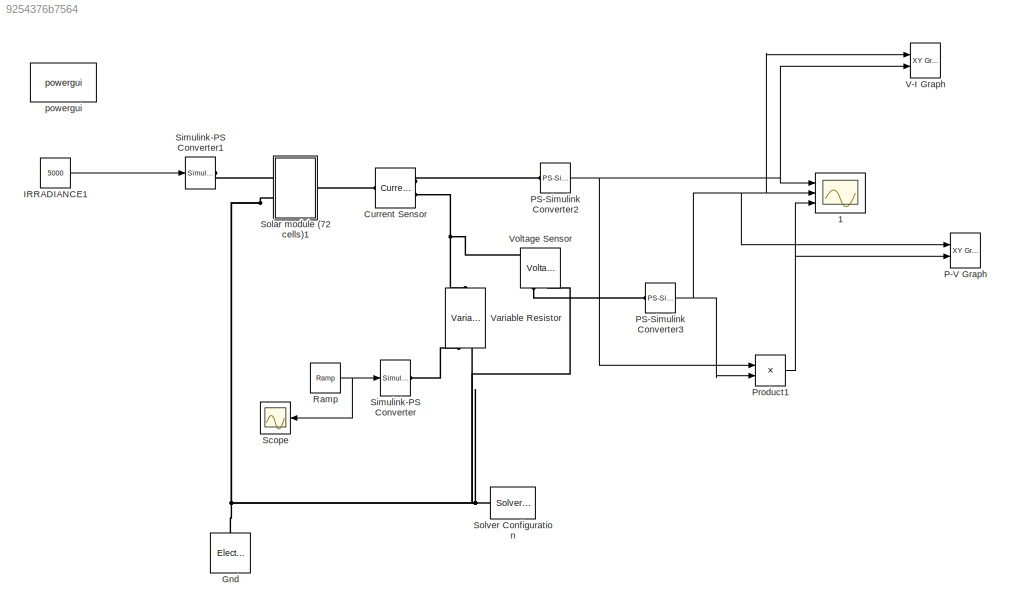
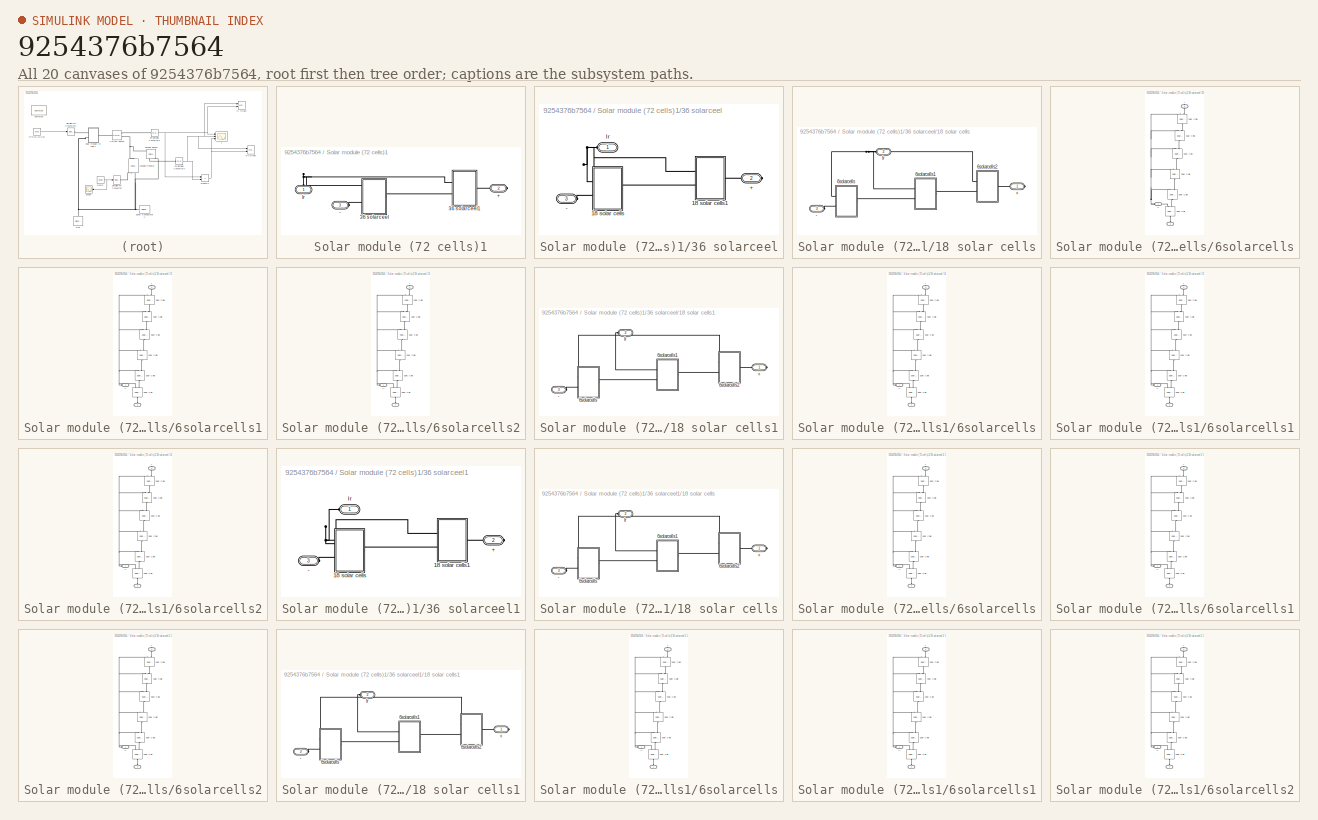
[diagram: thumbnail index - all 20 canvases of the model, root first then tree order]
MODEL slx_9254376b7564
KIND model
BLOCK [Scope]  1
  DataFormat = StructureWithTime
  Floating = off
  NumInputPorts = 3
  Ports = [3]
  SampleTime = 0
  SaveName = Sc
  SaveToWorkspace = on
  ShowLegends = off
  TickLabels = on
  TimeRange = 10
  YMax = 5~5~5
  YMin = -5~-5~-5
BLOCK [Reference] Current Sensor  REF=fl_lib/Electrical/Electrical Sensors/Current Sensor
  ClassName = current
  ComponentPath = foundation.electrical.sensors.current
  ComponentVariantNames = current
  ComponentVariants = foundation.electrical.sensors.current
  LocalVarDescs = |i1|v1
  LocalVarLogging = [0 0]
  LocalVarNames = |i1|v1
  Ports = [0, 0, 0, 0, 0, 1, 2]
  SchemaVersion = 1
  SourceBlock = fl_lib/Electrical/Electrical Sensors/Current Sensor
  SourceFile = foundation.electrical.sensors.current
  SourceType = Current Sensor
  i1_Log = off
  v1_Log = off
BLOCK [Reference] Gnd  REF=fl_lib/Electrical/Electrical Elements/Electrical Reference
  ClassName = reference
  ComponentPath = foundation.electrical.elements.reference
  ComponentVariantNames = reference
  ComponentVariants = foundation.electrical.elements.reference
  LocalVarDescs = |i
  LocalVarLogging = 0
  LocalVarNames = |i
  Ports = [0, 0, 0, 0, 0, 1]
  SchemaVersion = 1
  SourceBlock = fl_lib/Electrical/Electrical Elements/Electrical Reference
  SourceFile = foundation.electrical.elements.reference
  SourceType = Electrical Reference
  i_Log = off
BLOCK [Constant] IRRADIANCE1
  Value = 5000
BLOCK [Reference] P-V Graph   REF=simulink/Sinks/XY Graph
  Ports = [2]
  SourceBlock = simulink/Sinks/XY Graph
  SourceType = XY scope.
  st = 1
  xmax = 50
  xmin = 0
  ymax = 900
  ymin = 0
BLOCK [Reference] PS-Simulink Converter2  REF=nesl_utility/PS-Simulink
Converter
  AffineConversion = off
  Frequencies = []
  LeftPortType = input
  PhysicalDomain = network_engine_domain
  Ports = [0, 1, 0, 0, 0, 1]
  PseudoPeriodic = off
  RightPortType = output
  SourceBlock = nesl_utility/PS-Simulink\nConverter
  SourceType = PS-Simulink\nConverter
  SubClassName = ps_output
  Unit = 1
BLOCK [Reference] PS-Simulink Converter3  REF=nesl_utility/PS-Simulink
Converter
  AffineConversion = off
  Frequencies = []
  LeftPortType = input
  PhysicalDomain = network_engine_domain
  Ports = [0, 1, 0, 0, 0, 1]
  PseudoPeriodic = off
  RightPortType = output
  SourceBlock = nesl_utility/PS-Simulink\nConverter
  SourceType = PS-Simulink\nConverter
  SubClassName = ps_output
  Unit = 1
BLOCK [Product] Product1
  InputSameDT = off
  OutDataTypeStr = Inherit: Inherit via internal rule
  Ports = [2, 1]
  RndMeth = Floor
  SaturateOnIntegerOverflow = off
BLOCK [Reference] Ramp  REF=simulink/Sources/Ramp
  Ports = [0, 1]
  SourceBlock = simulink/Sources/Ramp
  SourceType = Ramp
  VectorParams1D = on
  X0 = 0
  slope = 1
  start = 0
BLOCK [Scope] Scope
  DataFormat = StructureWithTime
  Floating = off
  NumInputPorts = 1
  Ports = [1]
  SampleTime = 0
  ShowLegends = off
BLOCK [Reference] Simulink-PS Converter  REF=nesl_utility/Simulink-PS
Converter
  AffineConversion = off
  Frequencies = []
  InputFilterTimeConstant = 0.001
  InputFiltering = on
  LeftPortType = input
  NoiseDistribution = none
  NoiseParameters = []
  PhysicalDomain = network_engine_domain
  Ports = [1, 0, 0, 0, 0, 0, 1]
  PseudoPeriodic = off
  RightPortType = output
  SimscapeFilterOrder = 1
  SourceBlock = nesl_utility/Simulink-PS\nConverter
  SourceType = Simulink-PS\nConverter
  SubClassName = ps_input
  UdotUserProvided = 1
  Unit = 1
BLOCK [Reference] Simulink-PS Converter1  REF=nesl_utility/Simulink-PS
Converter
  AffineConversion = off
  Frequencies = []
  InputFilterTimeConstant = .001
  InputFiltering = off
  LeftPortType = input
  NoiseDistribution = none
  NoiseParameters = []
  PhysicalDomain = network_engine_domain
  Ports = [1, 0, 0, 0, 0, 0, 1]
  PseudoPeriodic = off
  RightPortType = output
  SimscapeFilterOrder = 1
  SourceBlock = nesl_utility/Simulink-PS\nConverter
  SourceType = Simulink-PS\nConverter
  SubClassName = ps_input
  UdotUserProvided = 0
  Unit = 1
BLOCK [SubSystem] Solar module (72 cells)1
  FunctionWithSeparateData = off
  MaskHideContents = off
  MinAlgLoopOccurrences = off
  Opaque = off
  Ports = [0, 0, 0, 0, 0, 2, 1]
  PropExecContextOutsideSubsystem = off
  RTWSystemCode = Auto
  RequestExecContextInheritance = off
BLOCK [PMIOPort] Solar module (72 cells)1/+
  Port = 2
  Side = Right
BLOCK [PMIOPort] Solar module (72 cells)1/-
  Port = 3
  Side = Left
BLOCK [SubSystem] Solar module (72 cells)1/36 solarceel
  FunctionWithSeparateData = off
  MaskHideContents = off
  MinAlgLoopOccurrences = off
  Opaque = off
  Ports = [0, 0, 0, 0, 0, 2, 1]
  PropExecContextOutsideSubsystem = off
  RTWSystemCode = Auto
  RequestExecContextInheritance = off
BLOCK [PMIOPort] Solar module (72 cells)1/36 solarceel/+
  Port = 2
  Side = Right
BLOCK [PMIOPort] Solar module (72 cells)1/36 solarceel/-
  Port = 3
  Side = Left
BLOCK [SubSystem] Solar module (72 cells)1/36 solarceel/18 solar cells
  FunctionWithSeparateData = off
  MaskHideContents = off
  MinAlgLoopOccurrences = off
  Opaque = off
  Ports = [0, 0, 0, 0, 0, 2, 1]
  PropExecContextOutsideSubsystem = off
  RTWSystemCode = Auto
  RequestExecContextInheritance = off
BLOCK [PMIOPort] Solar module (72 cells)1/36 solarceel/18 solar cells/+
  Port = 1
  Side = Right
BLOCK [PMIOPort] Solar module (72 cells)1/36 solarceel/18 solar cells/-
  Port = 3
  Side = Left
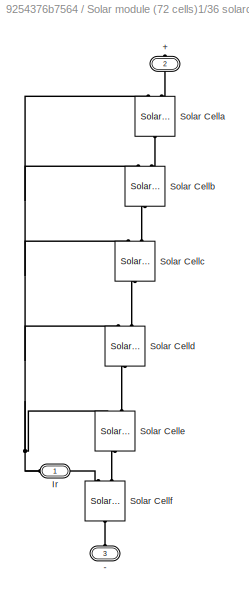
BLOCK [SubSystem] Solar module (72 cells)1/36 solarceel/18 solar cells/6solarcells
  FunctionWithSeparateData = off
  MaskHideContents = off
  MinAlgLoopOccurrences = off
  Opaque = off
  Ports = [0, 0, 0, 0, 0, 2, 1]
  PropExecContextOutsideSubsystem = off
  RTWSystemCode = Auto
  RequestExecContextInheritance = off
BLOCK [PMIOPort] Solar module (72 cells)1/36 solarceel/18 solar cells/6solarcells/+
  Port = 2
  Side = Right
BLOCK [PMIOPort] Solar module (72 cells)1/36 solarceel/18 solar cells/6solarcells/-
  Port = 3
  Side = Left
BLOCK [PMIOPort] Solar module (72 cells)1/36 solarceel/18 solar cells/6solarcells/Ir
  Port = 1
  Side = Left
BLOCK [Reference] Solar module (72 cells)1/36 solarceel/18 solar cells/6solarcells/Solar Cella  REF=elec_lib/Sources/Solar Cell
  ClassName = solar_cell
  ComponentPath = elec.sources.solar_cell
  ComponentVariantNames = No thermal port, Show thermal port
  ComponentVariants = elec.sources.solar_cell, elec.sources.solar_cell_thermal
  EG = 1.12
  EG_unit = eV
  Iph = 7.34
  Iph_unit = A
  Ir0 = 1000
  Ir0_unit = W/m^2
  Is = 1e-6
  Is2 = 0
  Is2_unit = A
  Is_unit = A
  Isc = 4.75
  Isc_unit = A
  LocalVarLogging = []
  N2 = 2
  N2_unit = 1
  Ports = [0, 0, 0, 0, 0, 2, 1]
  Rp = Inf
  Rp_unit = Ohm
  Rs = 5.1e-3
  Rs_unit = Ohm
  SchemaVersion = 1
  SourceBlock = elec_lib/Sources/Solar Cell
  SourceFile = elec.sources.solar_cell
  SourceType = Solar Cell
  TFIXED = 25
  TFIXED_unit = C
  TIPH1 = 0.65e-3
  TIPH1_unit = 1/K
  TRP1 = 0
  TRP1_unit = 1
  TRS1 = 0
  TRS1_unit = 1
  TXIS1 = 3
  TXIS1_unit = 1
  TXIS2 = 3
  TXIS2_unit = 1
  Tmeas = 25
  Tmeas_unit = C
  Voc = 0.6
  Voc_unit = V
  ec = 1.6
  ec_unit = 1
  initial_temperature = 25
  initial_temperature_unit = C
  prm = 1
  prm_unit = 1
  thermal_mass = 100
  thermal_mass_unit = J/K
BLOCK [Reference] Solar module (72 cells)1/36 solarceel/18 solar cells/6solarcells/Solar Cellb  REF=elec_lib/Sources/Solar Cell
  ClassName = solar_cell
  ComponentPath = elec.sources.solar_cell
  ComponentVariantNames = No thermal port, Show thermal port
  ComponentVariants = elec.sources.solar_cell, elec.sources.solar_cell_thermal
  EG = 1.12
  EG_unit = eV
  Iph = 7.34
  Iph_unit = A
  Ir0 = 1000
  Ir0_unit = W/m^2
  Is = 1e-6
  Is2 = 0
  Is2_unit = A
  Is_unit = A
  Isc = 4.75
  Isc_unit = A
  LocalVarLogging = []
  N2 = 2
  N2_unit = 1
  Ports = [0, 0, 0, 0, 0, 2, 1]
  Rp = Inf
  Rp_unit = Ohm
  Rs = 5.1e-3
  Rs_unit = Ohm
  SchemaVersion = 1
  SourceBlock = elec_lib/Sources/Solar Cell
  SourceFile = elec.sources.solar_cell
  SourceType = Solar Cell
  TFIXED = 25
  TFIXED_unit = C
  TIPH1 = 0.65e-3
  TIPH1_unit = 1/K
  TRP1 = 0
  TRP1_unit = 1
  TRS1 = 0
  TRS1_unit = 1
  TXIS1 = 3
  TXIS1_unit = 1
  TXIS2 = 3
  TXIS2_unit = 1
  Tmeas = 25
  Tmeas_unit = C
  Voc = 0.6
  Voc_unit = V
  ec = 1.6
  ec_unit = 1
  initial_temperature = 25
  initial_temperature_unit = C
  prm = 1
  prm_unit = 1
  thermal_mass = 100
  thermal_mass_unit = J/K
BLOCK [Reference] Solar module (72 cells)1/36 solarceel/18 solar cells/6solarcells/Solar Cellc  REF=elec_lib/Sources/Solar Cell
  ClassName = solar_cell
  ComponentPath = elec.sources.solar_cell
  ComponentVariantNames = No thermal port, Show thermal port
  ComponentVariants = elec.sources.solar_cell, elec.sources.solar_cell_thermal
  EG = 1.12
  EG_unit = eV
  Iph = 7.34
  Iph_unit = A
  Ir0 = 1000
  Ir0_unit = W/m^2
  Is = 1e-6
  Is2 = 0
  Is2_unit = A
  Is_unit = A
  Isc = 4.75
  Isc_unit = A
  LocalVarLogging = []
  N2 = 2
  N2_unit = 1
  Ports = [0, 0, 0, 0, 0, 2, 1]
  Rp = Inf
  Rp_unit = Ohm
  Rs = 5.1e-3
  Rs_unit = Ohm
  SchemaVersion = 1
  SourceBlock = elec_lib/Sources/Solar Cell
  SourceFile = elec.sources.solar_cell
  SourceType = Solar Cell
  TFIXED = 25
  TFIXED_unit = C
  TIPH1 = 0.65e-3
  TIPH1_unit = 1/K
  TRP1 = 0
  TRP1_unit = 1
  TRS1 = 0
  TRS1_unit = 1
  TXIS1 = 3
  TXIS1_unit = 1
  TXIS2 = 3
  TXIS2_unit = 1
  Tmeas = 25
  Tmeas_unit = C
  Voc = 0.6
  Voc_unit = V
  ec = 1.6
  ec_unit = 1
  initial_temperature = 25
  initial_temperature_unit = C
  prm = 1
  prm_unit = 1
  thermal_mass = 100
  thermal_mass_unit = J/K
BLOCK [Reference] Solar module (72 cells)1/36 solarceel/18 solar cells/6solarcells/Solar Celld  REF=elec_lib/Sources/Solar Cell
  ClassName = solar_cell
  ComponentPath = elec.sources.solar_cell
  ComponentVariantNames = No thermal port, Show thermal port
  ComponentVariants = elec.sources.solar_cell, elec.sources.solar_cell_thermal
  EG = 1.12
  EG_unit = eV
  Iph = 7.34
  Iph_unit = A
  Ir0 = 1000
  Ir0_unit = W/m^2
  Is = 1e-6
  Is2 = 0
  Is2_unit = A
  Is_unit = A
  Isc = 4.75
  Isc_unit = A
  LocalVarLogging = []
  N2 = 2
  N2_unit = 1
  Ports = [0, 0, 0, 0, 0, 2, 1]
  Rp = Inf
  Rp_unit = Ohm
  Rs = 5.1e-3
  Rs_unit = Ohm
  SchemaVersion = 1
  SourceBlock = elec_lib/Sources/Solar Cell
  SourceFile = elec.sources.solar_cell
  SourceType = Solar Cell
  TFIXED = 25
  TFIXED_unit = C
  TIPH1 = 0.65e-3
  TIPH1_unit = 1/K
  TRP1 = 0
  TRP1_unit = 1
  TRS1 = 0
  TRS1_unit = 1
  TXIS1 = 3
  TXIS1_unit = 1
  TXIS2 = 3
  TXIS2_unit = 1
  Tmeas = 25
  Tmeas_unit = C
  Voc = 0.6
  Voc_unit = V
  ec = 1.6
  ec_unit = 1
  initial_temperature = 25
  initial_temperature_unit = C
  prm = 1
  prm_unit = 1
  thermal_mass = 100
  thermal_mass_unit = J/K
BLOCK [Reference] Solar module (72 cells)1/36 solarceel/18 solar cells/6solarcells/Solar Celle  REF=elec_lib/Sources/Solar Cell
  ClassName = solar_cell
  ComponentPath = elec.sources.solar_cell
  ComponentVariantNames = No thermal port, Show thermal port
  ComponentVariants = elec.sources.solar_cell, elec.sources.solar_cell_thermal
  EG = 1.12
  EG_unit = eV
  Iph = 7.34
  Iph_unit = A
  Ir0 = 1000
  Ir0_unit = W/m^2
  Is = 1e-6
  Is2 = 0
  Is2_unit = A
  Is_unit = A
  Isc = 4.75
  Isc_unit = A
  LocalVarLogging = []
  N2 = 2
  N2_unit = 1
  Ports = [0, 0, 0, 0, 0, 2, 1]
  Rp = Inf
  Rp_unit = Ohm
  Rs = 5.1e-3
  Rs_unit = Ohm
  SchemaVersion = 1
  SourceBlock = elec_lib/Sources/Solar Cell
  SourceFile = elec.sources.solar_cell
  SourceType = Solar Cell
  TFIXED = 25
  TFIXED_unit = C
  TIPH1 = 0.65e-3
  TIPH1_unit = 1/K
  TRP1 = 0
  TRP1_unit = 1
  TRS1 = 0
  TRS1_unit = 1
  TXIS1 = 3
  TXIS1_unit = 1
  TXIS2 = 3
  TXIS2_unit = 1
  Tmeas = 25
  Tmeas_unit = C
  Voc = 0.6
  Voc_unit = V
  ec = 1.6
  ec_unit = 1
  initial_temperature = 25
  initial_temperature_unit = C
  prm = 1
  prm_unit = 1
  thermal_mass = 100
  thermal_mass_unit = J/K
BLOCK [Reference] Solar module (72 cells)1/36 solarceel/18 solar cells/6solarcells/Solar Cellf  REF=elec_lib/Sources/Solar Cell
  ClassName = solar_cell
  ComponentPath = elec.sources.solar_cell
  ComponentVariantNames = No thermal port, Show thermal port
  ComponentVariants = elec.sources.solar_cell, elec.sources.solar_cell_thermal
  EG = 1.12
  EG_unit = eV
  Iph = 7.34
  Iph_unit = A
  Ir0 = 1000
  Ir0_unit = W/m^2
  Is = 1e-6
  Is2 = 0
  Is2_unit = A
  Is_unit = A
  Isc = 4.75
  Isc_unit = A
  LocalVarLogging = []
  N2 = 2
  N2_unit = 1
  Ports = [0, 0, 0, 0, 0, 2, 1]
  Rp = Inf
  Rp_unit = Ohm
  Rs = 5.1e-3
  Rs_unit = Ohm
  SchemaVersion = 1
  SourceBlock = elec_lib/Sources/Solar Cell
  SourceFile = elec.sources.solar_cell
  SourceType = Solar Cell
  TFIXED = 25
  TFIXED_unit = C
  TIPH1 = 0.65e-3
  TIPH1_unit = 1/K
  TRP1 = 0
  TRP1_unit = 1
  TRS1 = 0
  TRS1_unit = 1
  TXIS1 = 3
  TXIS1_unit = 1
  TXIS2 = 3
  TXIS2_unit = 1
  Tmeas = 25
  Tmeas_unit = C
  Voc = 0.6
  Voc_unit = V
  ec = 1.6
  ec_unit = 1
  initial_temperature = 25
  initial_temperature_unit = C
  prm = 1
  prm_unit = 1
  thermal_mass = 100
  thermal_mass_unit = J/K
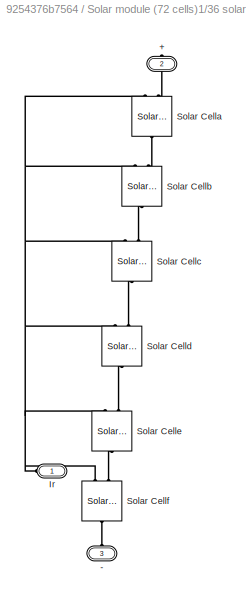
BLOCK [SubSystem] Solar module (72 cells)1/36 solarceel/18 solar cells/6solarcells1
  FunctionWithSeparateData = off
  MaskHideContents = off
  MinAlgLoopOccurrences = off
  Opaque = off
  Ports = [0, 0, 0, 0, 0, 2, 1]
  PropExecContextOutsideSubsystem = off
  RTWSystemCode = Auto
  RequestExecContextInheritance = off
BLOCK [PMIOPort] Solar module (72 cells)1/36 solarceel/18 solar cells/6solarcells1/+
  Port = 2
  Side = Right
BLOCK [PMIOPort] Solar module (72 cells)1/36 solarceel/18 solar cells/6solarcells1/-
  Port = 3
  Side = Left
BLOCK [PMIOPort] Solar module (72 cells)1/36 solarceel/18 solar cells/6solarcells1/Ir
  Port = 1
  Side = Left
BLOCK [Reference] Solar module (72 cells)1/36 solarceel/18 solar cells/6solarcells1/Solar Cella  REF=elec_lib/Sources/Solar Cell
  ClassName = solar_cell
  ComponentPath = elec.sources.solar_cell
  ComponentVariantNames = No thermal port, Show thermal port
  ComponentVariants = elec.sources.solar_cell, elec.sources.solar_cell_thermal
  EG = 1.12
  EG_unit = eV
  Iph = 7.34
  Iph_unit = A
  Ir0 = 1000
  Ir0_unit = W/m^2
  Is = 1e-6
  Is2 = 0
  Is2_unit = A
  Is_unit = A
  Isc = 4.75
  Isc_unit = A
  LocalVarLogging = []
  N2 = 2
  N2_unit = 1
  Ports = [0, 0, 0, 0, 0, 2, 1]
  Rp = Inf
  Rp_unit = Ohm
  Rs = 5.1e-3
  Rs_unit = Ohm
  SchemaVersion = 1
  SourceBlock = elec_lib/Sources/Solar Cell
  SourceFile = elec.sources.solar_cell
  SourceType = Solar Cell
  TFIXED = 25
  TFIXED_unit = C
  TIPH1 = 0.65e-3
  TIPH1_unit = 1/K
  TRP1 = 0
  TRP1_unit = 1
  TRS1 = 0
  TRS1_unit = 1
  TXIS1 = 3
  TXIS1_unit = 1
  TXIS2 = 3
  TXIS2_unit = 1
  Tmeas = 25
  Tmeas_unit = C
  Voc = 0.6
  Voc_unit = V
  ec = 1.6
  ec_unit = 1
  initial_temperature = 25
  initial_temperature_unit = C
  prm = 1
  prm_unit = 1
  thermal_mass = 100
  thermal_mass_unit = J/K
BLOCK [Reference] Solar module (72 cells)1/36 solarceel/18 solar cells/6solarcells1/Solar Cellb  REF=elec_lib/Sources/Solar Cell
  ClassName = solar_cell
  ComponentPath = elec.sources.solar_cell
  ComponentVariantNames = No thermal port, Show thermal port
  ComponentVariants = elec.sources.solar_cell, elec.sources.solar_cell_thermal
  EG = 1.12
  EG_unit = eV
  Iph = 7.34
  Iph_unit = A
  Ir0 = 1000
  Ir0_unit = W/m^2
  Is = 1e-6
  Is2 = 0
  Is2_unit = A
  Is_unit = A
  Isc = 4.75
  Isc_unit = A
  LocalVarLogging = []
  N2 = 2
  N2_unit = 1
  Ports = [0, 0, 0, 0, 0, 2, 1]
  Rp = Inf
  Rp_unit = Ohm
  Rs = 5.1e-3
  Rs_unit = Ohm
  SchemaVersion = 1
  SourceBlock = elec_lib/Sources/Solar Cell
  SourceFile = elec.sources.solar_cell
  SourceType = Solar Cell
  TFIXED = 25
  TFIXED_unit = C
  TIPH1 = 0.65e-3
  TIPH1_unit = 1/K
  TRP1 = 0
  TRP1_unit = 1
  TRS1 = 0
  TRS1_unit = 1
  TXIS1 = 3
  TXIS1_unit = 1
  TXIS2 = 3
  TXIS2_unit = 1
  Tmeas = 25
  Tmeas_unit = C
  Voc = 0.6
  Voc_unit = V
  ec = 1.6
  ec_unit = 1
  initial_temperature = 25
  initial_temperature_unit = C
  prm = 1
  prm_unit = 1
  thermal_mass = 100
  thermal_mass_unit = J/K
BLOCK [Reference] Solar module (72 cells)1/36 solarceel/18 solar cells/6solarcells1/Solar Cellc  REF=elec_lib/Sources/Solar Cell
  ClassName = solar_cell
  ComponentPath = elec.sources.solar_cell
  ComponentVariantNames = No thermal port, Show thermal port
  ComponentVariants = elec.sources.solar_cell, elec.sources.solar_cell_thermal
  EG = 1.12
  EG_unit = eV
  Iph = 7.34
  Iph_unit = A
  Ir0 = 1000
  Ir0_unit = W/m^2
  Is = 1e-6
  Is2 = 0
  Is2_unit = A
  Is_unit = A
  Isc = 4.75
  Isc_unit = A
  LocalVarLogging = []
  N2 = 2
  N2_unit = 1
  Ports = [0, 0, 0, 0, 0, 2, 1]
  Rp = Inf
  Rp_unit = Ohm
  Rs = 5.1e-3
  Rs_unit = Ohm
  SchemaVersion = 1
  SourceBlock = elec_lib/Sources/Solar Cell
  SourceFile = elec.sources.solar_cell
  SourceType = Solar Cell
  TFIXED = 25
  TFIXED_unit = C
  TIPH1 = 0.65e-3
  TIPH1_unit = 1/K
  TRP1 = 0
  TRP1_unit = 1
  TRS1 = 0
  TRS1_unit = 1
  TXIS1 = 3
  TXIS1_unit = 1
  TXIS2 = 3
  TXIS2_unit = 1
  Tmeas = 25
  Tmeas_unit = C
  Voc = 0.6
  Voc_unit = V
  ec = 1.6
  ec_unit = 1
  initial_temperature = 25
  initial_temperature_unit = C
  prm = 1
  prm_unit = 1
  thermal_mass = 100
  thermal_mass_unit = J/K
BLOCK [Reference] Solar module (72 cells)1/36 solarceel/18 solar cells/6solarcells1/Solar Celld  REF=elec_lib/Sources/Solar Cell
  ClassName = solar_cell
  ComponentPath = elec.sources.solar_cell
  ComponentVariantNames = No thermal port, Show thermal port
  ComponentVariants = elec.sources.solar_cell, elec.sources.solar_cell_thermal
  EG = 1.12
  EG_unit = eV
  Iph = 7.34
  Iph_unit = A
  Ir0 = 1000
  Ir0_unit = W/m^2
  Is = 1e-6
  Is2 = 0
  Is2_unit = A
  Is_unit = A
  Isc = 4.75
  Isc_unit = A
  LocalVarLogging = []
  N2 = 2
  N2_unit = 1
  Ports = [0, 0, 0, 0, 0, 2, 1]
  Rp = Inf
  Rp_unit = Ohm
  Rs = 5.1e-3
  Rs_unit = Ohm
  SchemaVersion = 1
  SourceBlock = elec_lib/Sources/Solar Cell
  SourceFile = elec.sources.solar_cell
  SourceType = Solar Cell
  TFIXED = 25
  TFIXED_unit = C
  TIPH1 = 0.65e-3
  TIPH1_unit = 1/K
  TRP1 = 0
  TRP1_unit = 1
  TRS1 = 0
  TRS1_unit = 1
  TXIS1 = 3
  TXIS1_unit = 1
  TXIS2 = 3
  TXIS2_unit = 1
  Tmeas = 25
  Tmeas_unit = C
  Voc = 0.6
  Voc_unit = V
  ec = 1.6
  ec_unit = 1
  initial_temperature = 25
  initial_temperature_unit = C
  prm = 1
  prm_unit = 1
  thermal_mass = 100
  thermal_mass_unit = J/K
BLOCK [Reference] Solar module (72 cells)1/36 solarceel/18 solar cells/6solarcells1/Solar Celle  REF=elec_lib/Sources/Solar Cell
  ClassName = solar_cell
  ComponentPath = elec.sources.solar_cell
  ComponentVariantNames = No thermal port, Show thermal port
  ComponentVariants = elec.sources.solar_cell, elec.sources.solar_cell_thermal
  EG = 1.12
  EG_unit = eV
  Iph = 7.34
  Iph_unit = A
  Ir0 = 1000
  Ir0_unit = W/m^2
  Is = 1e-6
  Is2 = 0
  Is2_unit = A
  Is_unit = A
  Isc = 4.75
  Isc_unit = A
  LocalVarLogging = []
  N2 = 2
  N2_unit = 1
  Ports = [0, 0, 0, 0, 0, 2, 1]
  Rp = Inf
  Rp_unit = Ohm
  Rs = 5.1e-3
  Rs_unit = Ohm
  SchemaVersion = 1
  SourceBlock = elec_lib/Sources/Solar Cell
  SourceFile = elec.sources.solar_cell
  SourceType = Solar Cell
  TFIXED = 25
  TFIXED_unit = C
  TIPH1 = 0.65e-3
  TIPH1_unit = 1/K
  TRP1 = 0
  TRP1_unit = 1
  TRS1 = 0
  TRS1_unit = 1
  TXIS1 = 3
  TXIS1_unit = 1
  TXIS2 = 3
  TXIS2_unit = 1
  Tmeas = 25
  Tmeas_unit = C
  Voc = 0.6
  Voc_unit = V
  ec = 1.6
  ec_unit = 1
  initial_temperature = 25
  initial_temperature_unit = C
  prm = 1
  prm_unit = 1
  thermal_mass = 100
  thermal_mass_unit = J/K
BLOCK [Reference] Solar module (72 cells)1/36 solarceel/18 solar cells/6solarcells1/Solar Cellf  REF=elec_lib/Sources/Solar Cell
  ClassName = solar_cell
  ComponentPath = elec.sources.solar_cell
  ComponentVariantNames = No thermal port, Show thermal port
  ComponentVariants = elec.sources.solar_cell, elec.sources.solar_cell_thermal
  EG = 1.12
  EG_unit = eV
  Iph = 7.34
  Iph_unit = A
  Ir0 = 1000
  Ir0_unit = W/m^2
  Is = 1e-6
  Is2 = 0
  Is2_unit = A
  Is_unit = A
  Isc = 4.75
  Isc_unit = A
  LocalVarLogging = []
  N2 = 2
  N2_unit = 1
  Ports = [0, 0, 0, 0, 0, 2, 1]
  Rp = Inf
  Rp_unit = Ohm
  Rs = 5.1e-3
  Rs_unit = Ohm
  SchemaVersion = 1
  SourceBlock = elec_lib/Sources/Solar Cell
  SourceFile = elec.sources.solar_cell
  SourceType = Solar Cell
  TFIXED = 25
  TFIXED_unit = C
  TIPH1 = 0.65e-3
  TIPH1_unit = 1/K
  TRP1 = 0
  TRP1_unit = 1
  TRS1 = 0
  TRS1_unit = 1
  TXIS1 = 3
  TXIS1_unit = 1
  TXIS2 = 3
  TXIS2_unit = 1
  Tmeas = 25
  Tmeas_unit = C
  Voc = 0.6
  Voc_unit = V
  ec = 1.6
  ec_unit = 1
  initial_temperature = 25
  initial_temperature_unit = C
  prm = 1
  prm_unit = 1
  thermal_mass = 100
  thermal_mass_unit = J/K
BLOCK [SubSystem] Solar module (72 cells)1/36 solarceel/18 solar cells/6solarcells2
  FunctionWithSeparateData = off
  MaskHideContents = off
  MinAlgLoopOccurrences = off
  Opaque = off
  Ports = [0, 0, 0, 0, 0, 2, 1]
  PropExecContextOutsideSubsystem = off
  RTWSystemCode = Auto
  RequestExecContextInheritance = off
BLOCK [PMIOPort] Solar module (72 cells)1/36 solarceel/18 solar cells/6solarcells2/+
  Port = 2
  Side = Right
BLOCK [PMIOPort] Solar module (72 cells)1/36 solarceel/18 solar cells/6solarcells2/-
  Port = 3
  Side = Left
BLOCK [PMIOPort] Solar module (72 cells)1/36 solarceel/18 solar cells/6solarcells2/Ir
  Port = 1
  Side = Left
BLOCK [Reference] Solar module (72 cells)1/36 solarceel/18 solar cells/6solarcells2/Solar Cella  REF=elec_lib/Sources/Solar Cell
  ClassName = solar_cell
  ComponentPath = elec.sources.solar_cell
  ComponentVariantNames = No thermal port, Show thermal port
  ComponentVariants = elec.sources.solar_cell, elec.sources.solar_cell_thermal
  EG = 1.12
  EG_unit = eV
  Iph = 7.34
  Iph_unit = A
  Ir0 = 1000
  Ir0_unit = W/m^2
  Is = 1e-6
  Is2 = 0
  Is2_unit = A
  Is_unit = A
  Isc = 4.75
  Isc_unit = A
  LocalVarLogging = []
  N2 = 2
  N2_unit = 1
  Ports = [0, 0, 0, 0, 0, 2, 1]
  Rp = Inf
  Rp_unit = Ohm
  Rs = 5.1e-3
  Rs_unit = Ohm
  SchemaVersion = 1
  SourceBlock = elec_lib/Sources/Solar Cell
  SourceFile = elec.sources.solar_cell
  SourceType = Solar Cell
  TFIXED = 25
  TFIXED_unit = C
  TIPH1 = 0.65e-3
  TIPH1_unit = 1/K
  TRP1 = 0
  TRP1_unit = 1
  TRS1 = 0
  TRS1_unit = 1
  TXIS1 = 3
  TXIS1_unit = 1
  TXIS2 = 3
  TXIS2_unit = 1
  Tmeas = 25
  Tmeas_unit = C
  Voc = 0.6
  Voc_unit = V
  ec = 1.6
  ec_unit = 1
  initial_temperature = 25
  initial_temperature_unit = C
  prm = 1
  prm_unit = 1
  thermal_mass = 100
  thermal_mass_unit = J/K
BLOCK [Reference] Solar module (72 cells)1/36 solarceel/18 solar cells/6solarcells2/Solar Cellb  REF=elec_lib/Sources/Solar Cell
  ClassName = solar_cell
  ComponentPath = elec.sources.solar_cell
  ComponentVariantNames = No thermal port, Show thermal port
  ComponentVariants = elec.sources.solar_cell, elec.sources.solar_cell_thermal
  EG = 1.12
  EG_unit = eV
  Iph = 7.34
  Iph_unit = A
  Ir0 = 1000
  Ir0_unit = W/m^2
  Is = 1e-6
  Is2 = 0
  Is2_unit = A
  Is_unit = A
  Isc = 4.75
  Isc_unit = A
  LocalVarLogging = []
  N2 = 2
  N2_unit = 1
  Ports = [0, 0, 0, 0, 0, 2, 1]
  Rp = Inf
  Rp_unit = Ohm
  Rs = 5.1e-3
  Rs_unit = Ohm
  SchemaVersion = 1
  SourceBlock = elec_lib/Sources/Solar Cell
  SourceFile = elec.sources.solar_cell
  SourceType = Solar Cell
  TFIXED = 25
  TFIXED_unit = C
  TIPH1 = 0.65e-3
  TIPH1_unit = 1/K
  TRP1 = 0
  TRP1_unit = 1
  TRS1 = 0
  TRS1_unit = 1
  TXIS1 = 3
  TXIS1_unit = 1
  TXIS2 = 3
  TXIS2_unit = 1
  Tmeas = 25
  Tmeas_unit = C
  Voc = 0.6
  Voc_unit = V
  ec = 1.6
  ec_unit = 1
  initial_temperature = 25
  initial_temperature_unit = C
  prm = 1
  prm_unit = 1
  thermal_mass = 100
  thermal_mass_unit = J/K
BLOCK [Reference] Solar module (72 cells)1/36 solarceel/18 solar cells/6solarcells2/Solar Cellc  REF=elec_lib/Sources/Solar Cell
  ClassName = solar_cell
  ComponentPath = elec.sources.solar_cell
  ComponentVariantNames = No thermal port, Show thermal port
  ComponentVariants = elec.sources.solar_cell, elec.sources.solar_cell_thermal
  EG = 1.12
  EG_unit = eV
  Iph = 7.34
  Iph_unit = A
  Ir0 = 1000
  Ir0_unit = W/m^2
  Is = 1e-6
  Is2 = 0
  Is2_unit = A
  Is_unit = A
  Isc = 4.75
  Isc_unit = A
  LocalVarLogging = []
  N2 = 2
  N2_unit = 1
  Ports = [0, 0, 0, 0, 0, 2, 1]
  Rp = Inf
  Rp_unit = Ohm
  Rs = 5.1e-3
  Rs_unit = Ohm
  SchemaVersion = 1
  SourceBlock = elec_lib/Sources/Solar Cell
  SourceFile = elec.sources.solar_cell
  SourceType = Solar Cell
  TFIXED = 25
  TFIXED_unit = C
  TIPH1 = 0.65e-3
  TIPH1_unit = 1/K
  TRP1 = 0
  TRP1_unit = 1
  TRS1 = 0
  TRS1_unit = 1
  TXIS1 = 3
  TXIS1_unit = 1
  TXIS2 = 3
  TXIS2_unit = 1
  Tmeas = 25
  Tmeas_unit = C
  Voc = 0.6
  Voc_unit = V
  ec = 1.6
  ec_unit = 1
  initial_temperature = 25
  initial_temperature_unit = C
  prm = 1
  prm_unit = 1
  thermal_mass = 100
  thermal_mass_unit = J/K
BLOCK [Reference] Solar module (72 cells)1/36 solarceel/18 solar cells/6solarcells2/Solar Celld  REF=elec_lib/Sources/Solar Cell
  ClassName = solar_cell
  ComponentPath = elec.sources.solar_cell
  ComponentVariantNames = No thermal port, Show thermal port
  ComponentVariants = elec.sources.solar_cell, elec.sources.solar_cell_thermal
  EG = 1.12
  EG_unit = eV
  Iph = 7.34
  Iph_unit = A
  Ir0 = 1000
  Ir0_unit = W/m^2
  Is = 1e-6
  Is2 = 0
  Is2_unit = A
  Is_unit = A
  Isc = 4.75
  Isc_unit = A
  LocalVarLogging = []
  N2 = 2
  N2_unit = 1
  Ports = [0, 0, 0, 0, 0, 2, 1]
  Rp = Inf
  Rp_unit = Ohm
  Rs = 5.1e-3
  Rs_unit = Ohm
  SchemaVersion = 1
  SourceBlock = elec_lib/Sources/Solar Cell
  SourceFile = elec.sources.solar_cell
  SourceType = Solar Cell
  TFIXED = 25
  TFIXED_unit = C
  TIPH1 = 0.65e-3
  TIPH1_unit = 1/K
  TRP1 = 0
  TRP1_unit = 1
  TRS1 = 0
  TRS1_unit = 1
  TXIS1 = 3
  TXIS1_unit = 1
  TXIS2 = 3
  TXIS2_unit = 1
  Tmeas = 25
  Tmeas_unit = C
  Voc = 0.6
  Voc_unit = V
  ec = 1.6
  ec_unit = 1
  initial_temperature = 25
  initial_temperature_unit = C
  prm = 1
  prm_unit = 1
  thermal_mass = 100
  thermal_mass_unit = J/K
BLOCK [Reference] Solar module (72 cells)1/36 solarceel/18 solar cells/6solarcells2/Solar Celle  REF=elec_lib/Sources/Solar Cell
  ClassName = solar_cell
  ComponentPath = elec.sources.solar_cell
  ComponentVariantNames = No thermal port, Show thermal port
  ComponentVariants = elec.sources.solar_cell, elec.sources.solar_cell_thermal
  EG = 1.12
  EG_unit = eV
  Iph = 7.34
  Iph_unit = A
  Ir0 = 1000
  Ir0_unit = W/m^2
  Is = 1e-6
  Is2 = 0
  Is2_unit = A
  Is_unit = A
  Isc = 4.75
  Isc_unit = A
  LocalVarLogging = []
  N2 = 2
  N2_unit = 1
  Ports = [0, 0, 0, 0, 0, 2, 1]
  Rp = Inf
  Rp_unit = Ohm
  Rs = 5.1e-3
  Rs_unit = Ohm
  SchemaVersion = 1
  SourceBlock = elec_lib/Sources/Solar Cell
  SourceFile = elec.sources.solar_cell
  SourceType = Solar Cell
  TFIXED = 25
  TFIXED_unit = C
  TIPH1 = 0.65e-3
  TIPH1_unit = 1/K
  TRP1 = 0
  TRP1_unit = 1
  TRS1 = 0
  TRS1_unit = 1
  TXIS1 = 3
  TXIS1_unit = 1
  TXIS2 = 3
  TXIS2_unit = 1
  Tmeas = 25
  Tmeas_unit = C
  Voc = 0.6
  Voc_unit = V
  ec = 1.6
  ec_unit = 1
  initial_temperature = 25
  initial_temperature_unit = C
  prm = 1
  prm_unit = 1
  thermal_mass = 100
  thermal_mass_unit = J/K
BLOCK [Reference] Solar module (72 cells)1/36 solarceel/18 solar cells/6solarcells2/Solar Cellf  REF=elec_lib/Sources/Solar Cell
  ClassName = solar_cell
  ComponentPath = elec.sources.solar_cell
  ComponentVariantNames = No thermal port, Show thermal port
  ComponentVariants = elec.sources.solar_cell, elec.sources.solar_cell_thermal
  EG = 1.12
  EG_unit = eV
  Iph = 7.34
  Iph_unit = A
  Ir0 = 1000
  Ir0_unit = W/m^2
  Is = 1e-6
  Is2 = 0
  Is2_unit = A
  Is_unit = A
  Isc = 4.75
  Isc_unit = A
  LocalVarLogging = []
  N2 = 2
  N2_unit = 1
  Ports = [0, 0, 0, 0, 0, 2, 1]
  Rp = Inf
  Rp_unit = Ohm
  Rs = 5.1e-3
  Rs_unit = Ohm
  SchemaVersion = 1
  SourceBlock = elec_lib/Sources/Solar Cell
  SourceFile = elec.sources.solar_cell
  SourceType = Solar Cell
  TFIXED = 25
  TFIXED_unit = C
  TIPH1 = 0.65e-3
  TIPH1_unit = 1/K
  TRP1 = 0
  TRP1_unit = 1
  TRS1 = 0
  TRS1_unit = 1
  TXIS1 = 3
  TXIS1_unit = 1
  TXIS2 = 3
  TXIS2_unit = 1
  Tmeas = 25
  Tmeas_unit = C
  Voc = 0.6
  Voc_unit = V
  ec = 1.6
  ec_unit = 1
  initial_temperature = 25
  initial_temperature_unit = C
  prm = 1
  prm_unit = 1
  thermal_mass = 100
  thermal_mass_unit = J/K
BLOCK [PMIOPort] Solar module (72 cells)1/36 solarceel/18 solar cells/Ir
  Port = 2
  Side = Left
BLOCK [SubSystem] Solar module (72 cells)1/36 solarceel/18 solar cells1
  FunctionWithSeparateData = off
  MaskHideContents = off
  MinAlgLoopOccurrences = off
  Opaque = off
  Ports = [0, 0, 0, 0, 0, 2, 1]
  PropExecContextOutsideSubsystem = off
  RTWSystemCode = Auto
  RequestExecContextInheritance = off
BLOCK [PMIOPort] Solar module (72 cells)1/36 solarceel/18 solar cells1/+
  Port = 1
  Side = Right
BLOCK [PMIOPort] Solar module (72 cells)1/36 solarceel/18 solar cells1/-
  Port = 3
  Side = Left
BLOCK [SubSystem] Solar module (72 cells)1/36 solarceel/18 solar cells1/6solarcells
  FunctionWithSeparateData = off
  MaskHideContents = off
  MinAlgLoopOccurrences = off
  Opaque = off
  Ports = [0, 0, 0, 0, 0, 2, 1]
  PropExecContextOutsideSubsystem = off
  RTWSystemCode = Auto
  RequestExecContextInheritance = off
BLOCK [PMIOPort] Solar module (72 cells)1/36 solarceel/18 solar cells1/6solarcells/+
  Port = 2
  Side = Right
BLOCK [PMIOPort] Solar module (72 cells)1/36 solarceel/18 solar cells1/6solarcells/-
  Port = 3
  Side = Left
BLOCK [PMIOPort] Solar module (72 cells)1/36 solarceel/18 solar cells1/6solarcells/Ir
  Port = 1
  Side = Left
BLOCK [Reference] Solar module (72 cells)1/36 solarceel/18 solar cells1/6solarcells/Solar Cella  REF=elec_lib/Sources/Solar Cell
  ClassName = solar_cell
  ComponentPath = elec.sources.solar_cell
  ComponentVariantNames = No thermal port, Show thermal port
  ComponentVariants = elec.sources.solar_cell, elec.sources.solar_cell_thermal
  EG = 1.12
  EG_unit = eV
  Iph = 7.34
  Iph_unit = A
  Ir0 = 1000
  Ir0_unit = W/m^2
  Is = 1e-6
  Is2 = 0
  Is2_unit = A
  Is_unit = A
  Isc = 4.75
  Isc_unit = A
  LocalVarLogging = []
  N2 = 2
  N2_unit = 1
  Ports = [0, 0, 0, 0, 0, 2, 1]
  Rp = Inf
  Rp_unit = Ohm
  Rs = 5.1e-3
  Rs_unit = Ohm
  SchemaVersion = 1
  SourceBlock = elec_lib/Sources/Solar Cell
  SourceFile = elec.sources.solar_cell
  SourceType = Solar Cell
  TFIXED = 25
  TFIXED_unit = C
  TIPH1 = 0.65e-3
  TIPH1_unit = 1/K
  TRP1 = 0
  TRP1_unit = 1
  TRS1 = 0
  TRS1_unit = 1
  TXIS1 = 3
  TXIS1_unit = 1
  TXIS2 = 3
  TXIS2_unit = 1
  Tmeas = 25
  Tmeas_unit = C
  Voc = 0.6
  Voc_unit = V
  ec = 1.6
  ec_unit = 1
  initial_temperature = 25
  initial_temperature_unit = C
  prm = 1
  prm_unit = 1
  thermal_mass = 100
  thermal_mass_unit = J/K
BLOCK [Reference] Solar module (72 cells)1/36 solarceel/18 solar cells1/6solarcells/Solar Cellb  REF=elec_lib/Sources/Solar Cell
  ClassName = solar_cell
  ComponentPath = elec.sources.solar_cell
  ComponentVariantNames = No thermal port, Show thermal port
  ComponentVariants = elec.sources.solar_cell, elec.sources.solar_cell_thermal
  EG = 1.12
  EG_unit = eV
  Iph = 7.34
  Iph_unit = A
  Ir0 = 1000
  Ir0_unit = W/m^2
  Is = 1e-6
  Is2 = 0
  Is2_unit = A
  Is_unit = A
  Isc = 4.75
  Isc_unit = A
  LocalVarLogging = []
  N2 = 2
  N2_unit = 1
  Ports = [0, 0, 0, 0, 0, 2, 1]
  Rp = Inf
  Rp_unit = Ohm
  Rs = 5.1e-3
  Rs_unit = Ohm
  SchemaVersion = 1
  SourceBlock = elec_lib/Sources/Solar Cell
  SourceFile = elec.sources.solar_cell
  SourceType = Solar Cell
  TFIXED = 25
  TFIXED_unit = C
  TIPH1 = 0.65e-3
  TIPH1_unit = 1/K
  TRP1 = 0
  TRP1_unit = 1
  TRS1 = 0
  TRS1_unit = 1
  TXIS1 = 3
  TXIS1_unit = 1
  TXIS2 = 3
  TXIS2_unit = 1
  Tmeas = 25
  Tmeas_unit = C
  Voc = 0.6
  Voc_unit = V
  ec = 1.6
  ec_unit = 1
  initial_temperature = 25
  initial_temperature_unit = C
  prm = 1
  prm_unit = 1
  thermal_mass = 100
  thermal_mass_unit = J/K
BLOCK [Reference] Solar module (72 cells)1/36 solarceel/18 solar cells1/6solarcells/Solar Cellc  REF=elec_lib/Sources/Solar Cell
  ClassName = solar_cell
  ComponentPath = elec.sources.solar_cell
  ComponentVariantNames = No thermal port, Show thermal port
  ComponentVariants = elec.sources.solar_cell, elec.sources.solar_cell_thermal
  EG = 1.12
  EG_unit = eV
  Iph = 7.34
  Iph_unit = A
  Ir0 = 1000
  Ir0_unit = W/m^2
  Is = 1e-6
  Is2 = 0
  Is2_unit = A
  Is_unit = A
  Isc = 4.75
  Isc_unit = A
  LocalVarLogging = []
  N2 = 2
  N2_unit = 1
  Ports = [0, 0, 0, 0, 0, 2, 1]
  Rp = Inf
  Rp_unit = Ohm
  Rs = 5.1e-3
  Rs_unit = Ohm
  SchemaVersion = 1
  SourceBlock = elec_lib/Sources/Solar Cell
  SourceFile = elec.sources.solar_cell
  SourceType = Solar Cell
  TFIXED = 25
  TFIXED_unit = C
  TIPH1 = 0.65e-3
  TIPH1_unit = 1/K
  TRP1 = 0
  TRP1_unit = 1
  TRS1 = 0
  TRS1_unit = 1
  TXIS1 = 3
  TXIS1_unit = 1
  TXIS2 = 3
  TXIS2_unit = 1
  Tmeas = 25
  Tmeas_unit = C
  Voc = 0.6
  Voc_unit = V
  ec = 1.6
  ec_unit = 1
  initial_temperature = 25
  initial_temperature_unit = C
  prm = 1
  prm_unit = 1
  thermal_mass = 100
  thermal_mass_unit = J/K
BLOCK [Reference] Solar module (72 cells)1/36 solarceel/18 solar cells1/6solarcells/Solar Celld  REF=elec_lib/Sources/Solar Cell
  ClassName = solar_cell
  ComponentPath = elec.sources.solar_cell
  ComponentVariantNames = No thermal port, Show thermal port
  ComponentVariants = elec.sources.solar_cell, elec.sources.solar_cell_thermal
  EG = 1.12
  EG_unit = eV
  Iph = 7.34
  Iph_unit = A
  Ir0 = 1000
  Ir0_unit = W/m^2
  Is = 1e-6
  Is2 = 0
  Is2_unit = A
  Is_unit = A
  Isc = 4.75
  Isc_unit = A
  LocalVarLogging = []
  N2 = 2
  N2_unit = 1
  Ports = [0, 0, 0, 0, 0, 2, 1]
  Rp = Inf
  Rp_unit = Ohm
  Rs = 5.1e-3
  Rs_unit = Ohm
  SchemaVersion = 1
  SourceBlock = elec_lib/Sources/Solar Cell
  SourceFile = elec.sources.solar_cell
  SourceType = Solar Cell
  TFIXED = 25
  TFIXED_unit = C
  TIPH1 = 0.65e-3
  TIPH1_unit = 1/K
  TRP1 = 0
  TRP1_unit = 1
  TRS1 = 0
  TRS1_unit = 1
  TXIS1 = 3
  TXIS1_unit = 1
  TXIS2 = 3
  TXIS2_unit = 1
  Tmeas = 25
  Tmeas_unit = C
  Voc = 0.6
  Voc_unit = V
  ec = 1.6
  ec_unit = 1
  initial_temperature = 25
  initial_temperature_unit = C
  prm = 1
  prm_unit = 1
  thermal_mass = 100
  thermal_mass_unit = J/K
BLOCK [Reference] Solar module (72 cells)1/36 solarceel/18 solar cells1/6solarcells/Solar Celle  REF=elec_lib/Sources/Solar Cell
  ClassName = solar_cell
  ComponentPath = elec.sources.solar_cell
  ComponentVariantNames = No thermal port, Show thermal port
  ComponentVariants = elec.sources.solar_cell, elec.sources.solar_cell_thermal
  EG = 1.12
  EG_unit = eV
  Iph = 7.34
  Iph_unit = A
  Ir0 = 1000
  Ir0_unit = W/m^2
  Is = 1e-6
  Is2 = 0
  Is2_unit = A
  Is_unit = A
  Isc = 4.75
  Isc_unit = A
  LocalVarLogging = []
  N2 = 2
  N2_unit = 1
  Ports = [0, 0, 0, 0, 0, 2, 1]
  Rp = Inf
  Rp_unit = Ohm
  Rs = 5.1e-3
  Rs_unit = Ohm
  SchemaVersion = 1
  SourceBlock = elec_lib/Sources/Solar Cell
  SourceFile = elec.sources.solar_cell
  SourceType = Solar Cell
  TFIXED = 25
  TFIXED_unit = C
  TIPH1 = 0.65e-3
  TIPH1_unit = 1/K
  TRP1 = 0
  TRP1_unit = 1
  TRS1 = 0
  TRS1_unit = 1
  TXIS1 = 3
  TXIS1_unit = 1
  TXIS2 = 3
  TXIS2_unit = 1
  Tmeas = 25
  Tmeas_unit = C
  Voc = 0.6
  Voc_unit = V
  ec = 1.6
  ec_unit = 1
  initial_temperature = 25
  initial_temperature_unit = C
  prm = 1
  prm_unit = 1
  thermal_mass = 100
  thermal_mass_unit = J/K
BLOCK [Reference] Solar module (72 cells)1/36 solarceel/18 solar cells1/6solarcells/Solar Cellf  REF=elec_lib/Sources/Solar Cell
  ClassName = solar_cell
  ComponentPath = elec.sources.solar_cell
  ComponentVariantNames = No thermal port, Show thermal port
  ComponentVariants = elec.sources.solar_cell, elec.sources.solar_cell_thermal
  EG = 1.12
  EG_unit = eV
  Iph = 7.34
  Iph_unit = A
  Ir0 = 1000
  Ir0_unit = W/m^2
  Is = 1e-6
  Is2 = 0
  Is2_unit = A
  Is_unit = A
  Isc = 4.75
  Isc_unit = A
  LocalVarLogging = []
  N2 = 2
  N2_unit = 1
  Ports = [0, 0, 0, 0, 0, 2, 1]
  Rp = Inf
  Rp_unit = Ohm
  Rs = 5.1e-3
  Rs_unit = Ohm
  SchemaVersion = 1
  SourceBlock = elec_lib/Sources/Solar Cell
  SourceFile = elec.sources.solar_cell
  SourceType = Solar Cell
  TFIXED = 25
  TFIXED_unit = C
  TIPH1 = 0.65e-3
  TIPH1_unit = 1/K
  TRP1 = 0
  TRP1_unit = 1
  TRS1 = 0
  TRS1_unit = 1
  TXIS1 = 3
  TXIS1_unit = 1
  TXIS2 = 3
  TXIS2_unit = 1
  Tmeas = 25
  Tmeas_unit = C
  Voc = 0.6
  Voc_unit = V
  ec = 1.6
  ec_unit = 1
  initial_temperature = 25
  initial_temperature_unit = C
  prm = 1
  prm_unit = 1
  thermal_mass = 100
  thermal_mass_unit = J/K
BLOCK [SubSystem] Solar module (72 cells)1/36 solarceel/18 solar cells1/6solarcells1
  FunctionWithSeparateData = off
  MaskHideContents = off
  MinAlgLoopOccurrences = off
  Opaque = off
  Ports = [0, 0, 0, 0, 0, 2, 1]
  PropExecContextOutsideSubsystem = off
  RTWSystemCode = Auto
  RequestExecContextInheritance = off
BLOCK [PMIOPort] Solar module (72 cells)1/36 solarceel/18 solar cells1/6solarcells1/+
  Port = 2
  Side = Right
BLOCK [PMIOPort] Solar module (72 cells)1/36 solarceel/18 solar cells1/6solarcells1/-
  Port = 3
  Side = Left
BLOCK [PMIOPort] Solar module (72 cells)1/36 solarceel/18 solar cells1/6solarcells1/Ir
  Port = 1
  Side = Left
BLOCK [Reference] Solar module (72 cells)1/36 solarceel/18 solar cells1/6solarcells1/Solar Cella  REF=elec_lib/Sources/Solar Cell
  ClassName = solar_cell
  ComponentPath = elec.sources.solar_cell
  ComponentVariantNames = No thermal port, Show thermal port
  ComponentVariants = elec.sources.solar_cell, elec.sources.solar_cell_thermal
  EG = 1.12
  EG_unit = eV
  Iph = 7.34
  Iph_unit = A
  Ir0 = 1000
  Ir0_unit = W/m^2
  Is = 1e-6
  Is2 = 0
  Is2_unit = A
  Is_unit = A
  Isc = 4.75
  Isc_unit = A
  LocalVarLogging = []
  N2 = 2
  N2_unit = 1
  Ports = [0, 0, 0, 0, 0, 2, 1]
  Rp = Inf
  Rp_unit = Ohm
  Rs = 5.1e-3
  Rs_unit = Ohm
  SchemaVersion = 1
  SourceBlock = elec_lib/Sources/Solar Cell
  SourceFile = elec.sources.solar_cell
  SourceType = Solar Cell
  TFIXED = 25
  TFIXED_unit = C
  TIPH1 = 0.65e-3
  TIPH1_unit = 1/K
  TRP1 = 0
  TRP1_unit = 1
  TRS1 = 0
  TRS1_unit = 1
  TXIS1 = 3
  TXIS1_unit = 1
  TXIS2 = 3
  TXIS2_unit = 1
  Tmeas = 25
  Tmeas_unit = C
  Voc = 0.6
  Voc_unit = V
  ec = 1.6
  ec_unit = 1
  initial_temperature = 25
  initial_temperature_unit = C
  prm = 1
  prm_unit = 1
  thermal_mass = 100
  thermal_mass_unit = J/K
BLOCK [Reference] Solar module (72 cells)1/36 solarceel/18 solar cells1/6solarcells1/Solar Cellb  REF=elec_lib/Sources/Solar Cell
  ClassName = solar_cell
  ComponentPath = elec.sources.solar_cell
  ComponentVariantNames = No thermal port, Show thermal port
  ComponentVariants = elec.sources.solar_cell, elec.sources.solar_cell_thermal
  EG = 1.12
  EG_unit = eV
  Iph = 7.34
  Iph_unit = A
  Ir0 = 1000
  Ir0_unit = W/m^2
  Is = 1e-6
  Is2 = 0
  Is2_unit = A
  Is_unit = A
  Isc = 4.75
  Isc_unit = A
  LocalVarLogging = []
  N2 = 2
  N2_unit = 1
  Ports = [0, 0, 0, 0, 0, 2, 1]
  Rp = Inf
  Rp_unit = Ohm
  Rs = 5.1e-3
  Rs_unit = Ohm
  SchemaVersion = 1
  SourceBlock = elec_lib/Sources/Solar Cell
  SourceFile = elec.sources.solar_cell
  SourceType = Solar Cell
  TFIXED = 25
  TFIXED_unit = C
  TIPH1 = 0.65e-3
  TIPH1_unit = 1/K
  TRP1 = 0
  TRP1_unit = 1
  TRS1 = 0
  TRS1_unit = 1
  TXIS1 = 3
  TXIS1_unit = 1
  TXIS2 = 3
  TXIS2_unit = 1
  Tmeas = 25
  Tmeas_unit = C
  Voc = 0.6
  Voc_unit = V
  ec = 1.6
  ec_unit = 1
  initial_temperature = 25
  initial_temperature_unit = C
  prm = 1
  prm_unit = 1
  thermal_mass = 100
  thermal_mass_unit = J/K
BLOCK [Reference] Solar module (72 cells)1/36 solarceel/18 solar cells1/6solarcells1/Solar Cellc  REF=elec_lib/Sources/Solar Cell
  ClassName = solar_cell
  ComponentPath = elec.sources.solar_cell
  ComponentVariantNames = No thermal port, Show thermal port
  ComponentVariants = elec.sources.solar_cell, elec.sources.solar_cell_thermal
  EG = 1.12
  EG_unit = eV
  Iph = 7.34
  Iph_unit = A
  Ir0 = 1000
  Ir0_unit = W/m^2
  Is = 1e-6
  Is2 = 0
  Is2_unit = A
  Is_unit = A
  Isc = 4.75
  Isc_unit = A
  LocalVarLogging = []
  N2 = 2
  N2_unit = 1
  Ports = [0, 0, 0, 0, 0, 2, 1]
  Rp = Inf
  Rp_unit = Ohm
  Rs = 5.1e-3
  Rs_unit = Ohm
  SchemaVersion = 1
  SourceBlock = elec_lib/Sources/Solar Cell
  SourceFile = elec.sources.solar_cell
  SourceType = Solar Cell
  TFIXED = 25
  TFIXED_unit = C
  TIPH1 = 0.65e-3
  TIPH1_unit = 1/K
  TRP1 = 0
  TRP1_unit = 1
  TRS1 = 0
  TRS1_unit = 1
  TXIS1 = 3
  TXIS1_unit = 1
  TXIS2 = 3
  TXIS2_unit = 1
  Tmeas = 25
  Tmeas_unit = C
  Voc = 0.6
  Voc_unit = V
  ec = 1.6
  ec_unit = 1
  initial_temperature = 25
  initial_temperature_unit = C
  prm = 1
  prm_unit = 1
  thermal_mass = 100
  thermal_mass_unit = J/K
BLOCK [Reference] Solar module (72 cells)1/36 solarceel/18 solar cells1/6solarcells1/Solar Celld  REF=elec_lib/Sources/Solar Cell
  ClassName = solar_cell
  ComponentPath = elec.sources.solar_cell
  ComponentVariantNames = No thermal port, Show thermal port
  ComponentVariants = elec.sources.solar_cell, elec.sources.solar_cell_thermal
  EG = 1.12
  EG_unit = eV
  Iph = 7.34
  Iph_unit = A
  Ir0 = 1000
  Ir0_unit = W/m^2
  Is = 1e-6
  Is2 = 0
  Is2_unit = A
  Is_unit = A
  Isc = 4.75
  Isc_unit = A
  LocalVarLogging = []
  N2 = 2
  N2_unit = 1
  Ports = [0, 0, 0, 0, 0, 2, 1]
  Rp = Inf
  Rp_unit = Ohm
  Rs = 5.1e-3
  Rs_unit = Ohm
  SchemaVersion = 1
  SourceBlock = elec_lib/Sources/Solar Cell
  SourceFile = elec.sources.solar_cell
  SourceType = Solar Cell
  TFIXED = 25
  TFIXED_unit = C
  TIPH1 = 0.65e-3
  TIPH1_unit = 1/K
  TRP1 = 0
  TRP1_unit = 1
  TRS1 = 0
  TRS1_unit = 1
  TXIS1 = 3
  TXIS1_unit = 1
  TXIS2 = 3
  TXIS2_unit = 1
  Tmeas = 25
  Tmeas_unit = C
  Voc = 0.6
  Voc_unit = V
  ec = 1.6
  ec_unit = 1
  initial_temperature = 25
  initial_temperature_unit = C
  prm = 1
  prm_unit = 1
  thermal_mass = 100
  thermal_mass_unit = J/K
BLOCK [Reference] Solar module (72 cells)1/36 solarceel/18 solar cells1/6solarcells1/Solar Celle  REF=elec_lib/Sources/Solar Cell
  ClassName = solar_cell
  ComponentPath = elec.sources.solar_cell
  ComponentVariantNames = No thermal port, Show thermal port
  ComponentVariants = elec.sources.solar_cell, elec.sources.solar_cell_thermal
  EG = 1.12
  EG_unit = eV
  Iph = 7.34
  Iph_unit = A
  Ir0 = 1000
  Ir0_unit = W/m^2
  Is = 1e-6
  Is2 = 0
  Is2_unit = A
  Is_unit = A
  Isc = 4.75
  Isc_unit = A
  LocalVarLogging = []
  N2 = 2
  N2_unit = 1
  Ports = [0, 0, 0, 0, 0, 2, 1]
  Rp = Inf
  Rp_unit = Ohm
  Rs = 5.1e-3
  Rs_unit = Ohm
  SchemaVersion = 1
  SourceBlock = elec_lib/Sources/Solar Cell
  SourceFile = elec.sources.solar_cell
  SourceType = Solar Cell
  TFIXED = 25
  TFIXED_unit = C
  TIPH1 = 0.65e-3
  TIPH1_unit = 1/K
  TRP1 = 0
  TRP1_unit = 1
  TRS1 = 0
  TRS1_unit = 1
  TXIS1 = 3
  TXIS1_unit = 1
  TXIS2 = 3
  TXIS2_unit = 1
  Tmeas = 25
  Tmeas_unit = C
  Voc = 0.6
  Voc_unit = V
  ec = 1.6
  ec_unit = 1
  initial_temperature = 25
  initial_temperature_unit = C
  prm = 1
  prm_unit = 1
  thermal_mass = 100
  thermal_mass_unit = J/K
BLOCK [Reference] Solar module (72 cells)1/36 solarceel/18 solar cells1/6solarcells1/Solar Cellf  REF=elec_lib/Sources/Solar Cell
  ClassName = solar_cell
  ComponentPath = elec.sources.solar_cell
  ComponentVariantNames = No thermal port, Show thermal port
  ComponentVariants = elec.sources.solar_cell, elec.sources.solar_cell_thermal
  EG = 1.12
  EG_unit = eV
  Iph = 7.34
  Iph_unit = A
  Ir0 = 1000
  Ir0_unit = W/m^2
  Is = 1e-6
  Is2 = 0
  Is2_unit = A
  Is_unit = A
  Isc = 4.75
  Isc_unit = A
  LocalVarLogging = []
  N2 = 2
  N2_unit = 1
  Ports = [0, 0, 0, 0, 0, 2, 1]
  Rp = Inf
  Rp_unit = Ohm
  Rs = 5.1e-3
  Rs_unit = Ohm
  SchemaVersion = 1
  SourceBlock = elec_lib/Sources/Solar Cell
  SourceFile = elec.sources.solar_cell
  SourceType = Solar Cell
  TFIXED = 25
  TFIXED_unit = C
  TIPH1 = 0.65e-3
  TIPH1_unit = 1/K
  TRP1 = 0
  TRP1_unit = 1
  TRS1 = 0
  TRS1_unit = 1
  TXIS1 = 3
  TXIS1_unit = 1
  TXIS2 = 3
  TXIS2_unit = 1
  Tmeas = 25
  Tmeas_unit = C
  Voc = 0.6
  Voc_unit = V
  ec = 1.6
  ec_unit = 1
  initial_temperature = 25
  initial_temperature_unit = C
  prm = 1
  prm_unit = 1
  thermal_mass = 100
  thermal_mass_unit = J/K
BLOCK [SubSystem] Solar module (72 cells)1/36 solarceel/18 solar cells1/6solarcells2
  FunctionWithSeparateData = off
  MaskHideContents = off
  MinAlgLoopOccurrences = off
  Opaque = off
  Ports = [0, 0, 0, 0, 0, 2, 1]
  PropExecContextOutsideSubsystem = off
  RTWSystemCode = Auto
  RequestExecContextInheritance = off
BLOCK [PMIOPort] Solar module (72 cells)1/36 solarceel/18 solar cells1/6solarcells2/+
  Port = 2
  Side = Right
BLOCK [PMIOPort] Solar module (72 cells)1/36 solarceel/18 solar cells1/6solarcells2/-
  Port = 3
  Side = Left
BLOCK [PMIOPort] Solar module (72 cells)1/36 solarceel/18 solar cells1/6solarcells2/Ir
  Port = 1
  Side = Left
BLOCK [Reference] Solar module (72 cells)1/36 solarceel/18 solar cells1/6solarcells2/Solar Cella  REF=elec_lib/Sources/Solar Cell
  ClassName = solar_cell
  ComponentPath = elec.sources.solar_cell
  ComponentVariantNames = No thermal port, Show thermal port
  ComponentVariants = elec.sources.solar_cell, elec.sources.solar_cell_thermal
  EG = 1.12
  EG_unit = eV
  Iph = 7.34
  Iph_unit = A
  Ir0 = 1000
  Ir0_unit = W/m^2
  Is = 1e-6
  Is2 = 0
  Is2_unit = A
  Is_unit = A
  Isc = 4.75
  Isc_unit = A
  LocalVarLogging = []
  N2 = 2
  N2_unit = 1
  Ports = [0, 0, 0, 0, 0, 2, 1]
  Rp = Inf
  Rp_unit = Ohm
  Rs = 5.1e-3
  Rs_unit = Ohm
  SchemaVersion = 1
  SourceBlock = elec_lib/Sources/Solar Cell
  SourceFile = elec.sources.solar_cell
  SourceType = Solar Cell
  TFIXED = 25
  TFIXED_unit = C
  TIPH1 = 0.65e-3
  TIPH1_unit = 1/K
  TRP1 = 0
  TRP1_unit = 1
  TRS1 = 0
  TRS1_unit = 1
  TXIS1 = 3
  TXIS1_unit = 1
  TXIS2 = 3
  TXIS2_unit = 1
  Tmeas = 25
  Tmeas_unit = C
  Voc = 0.6
  Voc_unit = V
  ec = 1.6
  ec_unit = 1
  initial_temperature = 25
  initial_temperature_unit = C
  prm = 1
  prm_unit = 1
  thermal_mass = 100
  thermal_mass_unit = J/K
BLOCK [Reference] Solar module (72 cells)1/36 solarceel/18 solar cells1/6solarcells2/Solar Cellb  REF=elec_lib/Sources/Solar Cell
  ClassName = solar_cell
  ComponentPath = elec.sources.solar_cell
  ComponentVariantNames = No thermal port, Show thermal port
  ComponentVariants = elec.sources.solar_cell, elec.sources.solar_cell_thermal
  EG = 1.12
  EG_unit = eV
  Iph = 7.34
  Iph_unit = A
  Ir0 = 1000
  Ir0_unit = W/m^2
  Is = 1e-6
  Is2 = 0
  Is2_unit = A
  Is_unit = A
  Isc = 4.75
  Isc_unit = A
  LocalVarLogging = []
  N2 = 2
  N2_unit = 1
  Ports = [0, 0, 0, 0, 0, 2, 1]
  Rp = Inf
  Rp_unit = Ohm
  Rs = 5.1e-3
  Rs_unit = Ohm
  SchemaVersion = 1
  SourceBlock = elec_lib/Sources/Solar Cell
  SourceFile = elec.sources.solar_cell
  SourceType = Solar Cell
  TFIXED = 25
  TFIXED_unit = C
  TIPH1 = 0.65e-3
  TIPH1_unit = 1/K
  TRP1 = 0
  TRP1_unit = 1
  TRS1 = 0
  TRS1_unit = 1
  TXIS1 = 3
  TXIS1_unit = 1
  TXIS2 = 3
  TXIS2_unit = 1
  Tmeas = 25
  Tmeas_unit = C
  Voc = 0.6
  Voc_unit = V
  ec = 1.6
  ec_unit = 1
  initial_temperature = 25
  initial_temperature_unit = C
  prm = 1
  prm_unit = 1
  thermal_mass = 100
  thermal_mass_unit = J/K
BLOCK [Reference] Solar module (72 cells)1/36 solarceel/18 solar cells1/6solarcells2/Solar Cellc  REF=elec_lib/Sources/Solar Cell
  ClassName = solar_cell
  ComponentPath = elec.sources.solar_cell
  ComponentVariantNames = No thermal port, Show thermal port
  ComponentVariants = elec.sources.solar_cell, elec.sources.solar_cell_thermal
  EG = 1.12
  EG_unit = eV
  Iph = 7.34
  Iph_unit = A
  Ir0 = 1000
  Ir0_unit = W/m^2
  Is = 1e-6
  Is2 = 0
  Is2_unit = A
  Is_unit = A
  Isc = 4.75
  Isc_unit = A
  LocalVarLogging = []
  N2 = 2
  N2_unit = 1
  Ports = [0, 0, 0, 0, 0, 2, 1]
  Rp = Inf
  Rp_unit = Ohm
  Rs = 5.1e-3
  Rs_unit = Ohm
  SchemaVersion = 1
  SourceBlock = elec_lib/Sources/Solar Cell
  SourceFile = elec.sources.solar_cell
  SourceType = Solar Cell
  TFIXED = 25
  TFIXED_unit = C
  TIPH1 = 0.65e-3
  TIPH1_unit = 1/K
  TRP1 = 0
  TRP1_unit = 1
  TRS1 = 0
  TRS1_unit = 1
  TXIS1 = 3
  TXIS1_unit = 1
  TXIS2 = 3
  TXIS2_unit = 1
  Tmeas = 25
  Tmeas_unit = C
  Voc = 0.6
  Voc_unit = V
  ec = 1.6
  ec_unit = 1
  initial_temperature = 25
  initial_temperature_unit = C
  prm = 1
  prm_unit = 1
  thermal_mass = 100
  thermal_mass_unit = J/K
BLOCK [Reference] Solar module (72 cells)1/36 solarceel/18 solar cells1/6solarcells2/Solar Celld  REF=elec_lib/Sources/Solar Cell
  ClassName = solar_cell
  ComponentPath = elec.sources.solar_cell
  ComponentVariantNames = No thermal port, Show thermal port
  ComponentVariants = elec.sources.solar_cell, elec.sources.solar_cell_thermal
  EG = 1.12
  EG_unit = eV
  Iph = 7.34
  Iph_unit = A
  Ir0 = 1000
  Ir0_unit = W/m^2
  Is = 1e-6
  Is2 = 0
  Is2_unit = A
  Is_unit = A
  Isc = 4.75
  Isc_unit = A
  LocalVarLogging = []
  N2 = 2
  N2_unit = 1
  Ports = [0, 0, 0, 0, 0, 2, 1]
  Rp = Inf
  Rp_unit = Ohm
  Rs = 5.1e-3
  Rs_unit = Ohm
  SchemaVersion = 1
  SourceBlock = elec_lib/Sources/Solar Cell
  SourceFile = elec.sources.solar_cell
  SourceType = Solar Cell
  TFIXED = 25
  TFIXED_unit = C
  TIPH1 = 0.65e-3
  TIPH1_unit = 1/K
  TRP1 = 0
  TRP1_unit = 1
  TRS1 = 0
  TRS1_unit = 1
  TXIS1 = 3
  TXIS1_unit = 1
  TXIS2 = 3
  TXIS2_unit = 1
  Tmeas = 25
  Tmeas_unit = C
  Voc = 0.6
  Voc_unit = V
  ec = 1.6
  ec_unit = 1
  initial_temperature = 25
  initial_temperature_unit = C
  prm = 1
  prm_unit = 1
  thermal_mass = 100
  thermal_mass_unit = J/K
BLOCK [Reference] Solar module (72 cells)1/36 solarceel/18 solar cells1/6solarcells2/Solar Celle  REF=elec_lib/Sources/Solar Cell
  ClassName = solar_cell
  ComponentPath = elec.sources.solar_cell
  ComponentVariantNames = No thermal port, Show thermal port
  ComponentVariants = elec.sources.solar_cell, elec.sources.solar_cell_thermal
  EG = 1.12
  EG_unit = eV
  Iph = 7.34
  Iph_unit = A
  Ir0 = 1000
  Ir0_unit = W/m^2
  Is = 1e-6
  Is2 = 0
  Is2_unit = A
  Is_unit = A
  Isc = 4.75
  Isc_unit = A
  LocalVarLogging = []
  N2 = 2
  N2_unit = 1
  Ports = [0, 0, 0, 0, 0, 2, 1]
  Rp = Inf
  Rp_unit = Ohm
  Rs = 5.1e-3
  Rs_unit = Ohm
  SchemaVersion = 1
  SourceBlock = elec_lib/Sources/Solar Cell
  SourceFile = elec.sources.solar_cell
  SourceType = Solar Cell
  TFIXED = 25
  TFIXED_unit = C
  TIPH1 = 0.65e-3
  TIPH1_unit = 1/K
  TRP1 = 0
  TRP1_unit = 1
  TRS1 = 0
  TRS1_unit = 1
  TXIS1 = 3
  TXIS1_unit = 1
  TXIS2 = 3
  TXIS2_unit = 1
  Tmeas = 25
  Tmeas_unit = C
  Voc = 0.6
  Voc_unit = V
  ec = 1.6
  ec_unit = 1
  initial_temperature = 25
  initial_temperature_unit = C
  prm = 1
  prm_unit = 1
  thermal_mass = 100
  thermal_mass_unit = J/K
BLOCK [Reference] Solar module (72 cells)1/36 solarceel/18 solar cells1/6solarcells2/Solar Cellf  REF=elec_lib/Sources/Solar Cell
  ClassName = solar_cell
  ComponentPath = elec.sources.solar_cell
  ComponentVariantNames = No thermal port, Show thermal port
  ComponentVariants = elec.sources.solar_cell, elec.sources.solar_cell_thermal
  EG = 1.12
  EG_unit = eV
  Iph = 7.34
  Iph_unit = A
  Ir0 = 1000
  Ir0_unit = W/m^2
  Is = 1e-6
  Is2 = 0
  Is2_unit = A
  Is_unit = A
  Isc = 4.75
  Isc_unit = A
  LocalVarLogging = []
  N2 = 2
  N2_unit = 1
  Ports = [0, 0, 0, 0, 0, 2, 1]
  Rp = Inf
  Rp_unit = Ohm
  Rs = 5.1e-3
  Rs_unit = Ohm
  SchemaVersion = 1
  SourceBlock = elec_lib/Sources/Solar Cell
  SourceFile = elec.sources.solar_cell
  SourceType = Solar Cell
  TFIXED = 25
  TFIXED_unit = C
  TIPH1 = 0.65e-3
  TIPH1_unit = 1/K
  TRP1 = 0
  TRP1_unit = 1
  TRS1 = 0
  TRS1_unit = 1
  TXIS1 = 3
  TXIS1_unit = 1
  TXIS2 = 3
  TXIS2_unit = 1
  Tmeas = 25
  Tmeas_unit = C
  Voc = 0.6
  Voc_unit = V
  ec = 1.6
  ec_unit = 1
  initial_temperature = 25
  initial_temperature_unit = C
  prm = 1
  prm_unit = 1
  thermal_mass = 100
  thermal_mass_unit = J/K
BLOCK [PMIOPort] Solar module (72 cells)1/36 solarceel/18 solar cells1/Ir
  Port = 2
  Side = Left
BLOCK [PMIOPort] Solar module (72 cells)1/36 solarceel/Ir
  Port = 1
  Side = Left
BLOCK [SubSystem] Solar module (72 cells)1/36 solarceel1
  FunctionWithSeparateData = off
  MaskHideContents = off
  MinAlgLoopOccurrences = off
  Opaque = off
  Ports = [0, 0, 0, 0, 0, 2, 1]
  PropExecContextOutsideSubsystem = off
  RTWSystemCode = Auto
  RequestExecContextInheritance = off
BLOCK [PMIOPort] Solar module (72 cells)1/36 solarceel1/+
  Port = 2
  Side = Right
BLOCK [PMIOPort] Solar module (72 cells)1/36 solarceel1/-
  Port = 3
  Side = Left
BLOCK [SubSystem] Solar module (72 cells)1/36 solarceel1/18 solar cells
  FunctionWithSeparateData = off
  MaskHideContents = off
  MinAlgLoopOccurrences = off
  Opaque = off
  Ports = [0, 0, 0, 0, 0, 2, 1]
  PropExecContextOutsideSubsystem = off
  RTWSystemCode = Auto
  RequestExecContextInheritance = off
BLOCK [PMIOPort] Solar module (72 cells)1/36 solarceel1/18 solar cells/+
  Port = 1
  Side = Right
BLOCK [PMIOPort] Solar module (72 cells)1/36 solarceel1/18 solar cells/-
  Port = 3
  Side = Left
BLOCK [SubSystem] Solar module (72 cells)1/36 solarceel1/18 solar cells/6solarcells
  FunctionWithSeparateData = off
  MaskHideContents = off
  MinAlgLoopOccurrences = off
  Opaque = off
  Ports = [0, 0, 0, 0, 0, 2, 1]
  PropExecContextOutsideSubsystem = off
  RTWSystemCode = Auto
  RequestExecContextInheritance = off
BLOCK [PMIOPort] Solar module (72 cells)1/36 solarceel1/18 solar cells/6solarcells/+
  Port = 2
  Side = Right
BLOCK [PMIOPort] Solar module (72 cells)1/36 solarceel1/18 solar cells/6solarcells/-
  Port = 3
  Side = Left
BLOCK [PMIOPort] Solar module (72 cells)1/36 solarceel1/18 solar cells/6solarcells/Ir
  Port = 1
  Side = Left
BLOCK [Reference] Solar module (72 cells)1/36 solarceel1/18 solar cells/6solarcells/Solar Cella  REF=elec_lib/Sources/Solar Cell
  ClassName = solar_cell
  ComponentPath = elec.sources.solar_cell
  ComponentVariantNames = No thermal port, Show thermal port
  ComponentVariants = elec.sources.solar_cell, elec.sources.solar_cell_thermal
  EG = 1.12
  EG_unit = eV
  Iph = 7.34
  Iph_unit = A
  Ir0 = 1000
  Ir0_unit = W/m^2
  Is = 1e-6
  Is2 = 0
  Is2_unit = A
  Is_unit = A
  Isc = 4.75
  Isc_unit = A
  LocalVarLogging = []
  N2 = 2
  N2_unit = 1
  Ports = [0, 0, 0, 0, 0, 2, 1]
  Rp = Inf
  Rp_unit = Ohm
  Rs = 5.1e-3
  Rs_unit = Ohm
  SchemaVersion = 1
  SourceBlock = elec_lib/Sources/Solar Cell
  SourceFile = elec.sources.solar_cell
  SourceType = Solar Cell
  TFIXED = 25
  TFIXED_unit = C
  TIPH1 = 0.65e-3
  TIPH1_unit = 1/K
  TRP1 = 0
  TRP1_unit = 1
  TRS1 = 0
  TRS1_unit = 1
  TXIS1 = 3
  TXIS1_unit = 1
  TXIS2 = 3
  TXIS2_unit = 1
  Tmeas = 25
  Tmeas_unit = C
  Voc = 0.6
  Voc_unit = V
  ec = 1.6
  ec_unit = 1
  initial_temperature = 25
  initial_temperature_unit = C
  prm = 1
  prm_unit = 1
  thermal_mass = 100
  thermal_mass_unit = J/K
BLOCK [Reference] Solar module (72 cells)1/36 solarceel1/18 solar cells/6solarcells/Solar Cellb  REF=elec_lib/Sources/Solar Cell
  ClassName = solar_cell
  ComponentPath = elec.sources.solar_cell
  ComponentVariantNames = No thermal port, Show thermal port
  ComponentVariants = elec.sources.solar_cell, elec.sources.solar_cell_thermal
  EG = 1.12
  EG_unit = eV
  Iph = 7.34
  Iph_unit = A
  Ir0 = 1000
  Ir0_unit = W/m^2
  Is = 1e-6
  Is2 = 0
  Is2_unit = A
  Is_unit = A
  Isc = 4.75
  Isc_unit = A
  LocalVarLogging = []
  N2 = 2
  N2_unit = 1
  Ports = [0, 0, 0, 0, 0, 2, 1]
  Rp = Inf
  Rp_unit = Ohm
  Rs = 5.1e-3
  Rs_unit = Ohm
  SchemaVersion = 1
  SourceBlock = elec_lib/Sources/Solar Cell
  SourceFile = elec.sources.solar_cell
  SourceType = Solar Cell
  TFIXED = 25
  TFIXED_unit = C
  TIPH1 = 0.65e-3
  TIPH1_unit = 1/K
  TRP1 = 0
  TRP1_unit = 1
  TRS1 = 0
  TRS1_unit = 1
  TXIS1 = 3
  TXIS1_unit = 1
  TXIS2 = 3
  TXIS2_unit = 1
  Tmeas = 25
  Tmeas_unit = C
  Voc = 0.6
  Voc_unit = V
  ec = 1.6
  ec_unit = 1
  initial_temperature = 25
  initial_temperature_unit = C
  prm = 1
  prm_unit = 1
  thermal_mass = 100
  thermal_mass_unit = J/K
BLOCK [Reference] Solar module (72 cells)1/36 solarceel1/18 solar cells/6solarcells/Solar Cellc  REF=elec_lib/Sources/Solar Cell
  ClassName = solar_cell
  ComponentPath = elec.sources.solar_cell
  ComponentVariantNames = No thermal port, Show thermal port
  ComponentVariants = elec.sources.solar_cell, elec.sources.solar_cell_thermal
  EG = 1.12
  EG_unit = eV
  Iph = 7.34
  Iph_unit = A
  Ir0 = 1000
  Ir0_unit = W/m^2
  Is = 1e-6
  Is2 = 0
  Is2_unit = A
  Is_unit = A
  Isc = 4.75
  Isc_unit = A
  LocalVarLogging = []
  N2 = 2
  N2_unit = 1
  Ports = [0, 0, 0, 0, 0, 2, 1]
  Rp = Inf
  Rp_unit = Ohm
  Rs = 5.1e-3
  Rs_unit = Ohm
  SchemaVersion = 1
  SourceBlock = elec_lib/Sources/Solar Cell
  SourceFile = elec.sources.solar_cell
  SourceType = Solar Cell
  TFIXED = 25
  TFIXED_unit = C
  TIPH1 = 0.65e-3
  TIPH1_unit = 1/K
  TRP1 = 0
  TRP1_unit = 1
  TRS1 = 0
  TRS1_unit = 1
  TXIS1 = 3
  TXIS1_unit = 1
  TXIS2 = 3
  TXIS2_unit = 1
  Tmeas = 25
  Tmeas_unit = C
  Voc = 0.6
  Voc_unit = V
  ec = 1.6
  ec_unit = 1
  initial_temperature = 25
  initial_temperature_unit = C
  prm = 1
  prm_unit = 1
  thermal_mass = 100
  thermal_mass_unit = J/K
BLOCK [Reference] Solar module (72 cells)1/36 solarceel1/18 solar cells/6solarcells/Solar Celld  REF=elec_lib/Sources/Solar Cell
  ClassName = solar_cell
  ComponentPath = elec.sources.solar_cell
  ComponentVariantNames = No thermal port, Show thermal port
  ComponentVariants = elec.sources.solar_cell, elec.sources.solar_cell_thermal
  EG = 1.12
  EG_unit = eV
  Iph = 7.34
  Iph_unit = A
  Ir0 = 1000
  Ir0_unit = W/m^2
  Is = 1e-6
  Is2 = 0
  Is2_unit = A
  Is_unit = A
  Isc = 4.75
  Isc_unit = A
  LocalVarLogging = []
  N2 = 2
  N2_unit = 1
  Ports = [0, 0, 0, 0, 0, 2, 1]
  Rp = Inf
  Rp_unit = Ohm
  Rs = 5.1e-3
  Rs_unit = Ohm
  SchemaVersion = 1
  SourceBlock = elec_lib/Sources/Solar Cell
  SourceFile = elec.sources.solar_cell
  SourceType = Solar Cell
  TFIXED = 25
  TFIXED_unit = C
  TIPH1 = 0.65e-3
  TIPH1_unit = 1/K
  TRP1 = 0
  TRP1_unit = 1
  TRS1 = 0
  TRS1_unit = 1
  TXIS1 = 3
  TXIS1_unit = 1
  TXIS2 = 3
  TXIS2_unit = 1
  Tmeas = 25
  Tmeas_unit = C
  Voc = 0.6
  Voc_unit = V
  ec = 1.6
  ec_unit = 1
  initial_temperature = 25
  initial_temperature_unit = C
  prm = 1
  prm_unit = 1
  thermal_mass = 100
  thermal_mass_unit = J/K
BLOCK [Reference] Solar module (72 cells)1/36 solarceel1/18 solar cells/6solarcells/Solar Celle  REF=elec_lib/Sources/Solar Cell
  ClassName = solar_cell
  ComponentPath = elec.sources.solar_cell
  ComponentVariantNames = No thermal port, Show thermal port
  ComponentVariants = elec.sources.solar_cell, elec.sources.solar_cell_thermal
  EG = 1.12
  EG_unit = eV
  Iph = 7.34
  Iph_unit = A
  Ir0 = 1000
  Ir0_unit = W/m^2
  Is = 1e-6
  Is2 = 0
  Is2_unit = A
  Is_unit = A
  Isc = 4.75
  Isc_unit = A
  LocalVarLogging = []
  N2 = 2
  N2_unit = 1
  Ports = [0, 0, 0, 0, 0, 2, 1]
  Rp = Inf
  Rp_unit = Ohm
  Rs = 5.1e-3
  Rs_unit = Ohm
  SchemaVersion = 1
  SourceBlock = elec_lib/Sources/Solar Cell
  SourceFile = elec.sources.solar_cell
  SourceType = Solar Cell
  TFIXED = 25
  TFIXED_unit = C
  TIPH1 = 0.65e-3
  TIPH1_unit = 1/K
  TRP1 = 0
  TRP1_unit = 1
  TRS1 = 0
  TRS1_unit = 1
  TXIS1 = 3
  TXIS1_unit = 1
  TXIS2 = 3
  TXIS2_unit = 1
  Tmeas = 25
  Tmeas_unit = C
  Voc = 0.6
  Voc_unit = V
  ec = 1.6
  ec_unit = 1
  initial_temperature = 25
  initial_temperature_unit = C
  prm = 1
  prm_unit = 1
  thermal_mass = 100
  thermal_mass_unit = J/K
BLOCK [Reference] Solar module (72 cells)1/36 solarceel1/18 solar cells/6solarcells/Solar Cellf  REF=elec_lib/Sources/Solar Cell
  ClassName = solar_cell
  ComponentPath = elec.sources.solar_cell
  ComponentVariantNames = No thermal port, Show thermal port
  ComponentVariants = elec.sources.solar_cell, elec.sources.solar_cell_thermal
  EG = 1.12
  EG_unit = eV
  Iph = 7.34
  Iph_unit = A
  Ir0 = 1000
  Ir0_unit = W/m^2
  Is = 1e-6
  Is2 = 0
  Is2_unit = A
  Is_unit = A
  Isc = 4.75
  Isc_unit = A
  LocalVarLogging = []
  N2 = 2
  N2_unit = 1
  Ports = [0, 0, 0, 0, 0, 2, 1]
  Rp = Inf
  Rp_unit = Ohm
  Rs = 5.1e-3
  Rs_unit = Ohm
  SchemaVersion = 1
  SourceBlock = elec_lib/Sources/Solar Cell
  SourceFile = elec.sources.solar_cell
  SourceType = Solar Cell
  TFIXED = 25
  TFIXED_unit = C
  TIPH1 = 0.65e-3
  TIPH1_unit = 1/K
  TRP1 = 0
  TRP1_unit = 1
  TRS1 = 0
  TRS1_unit = 1
  TXIS1 = 3
  TXIS1_unit = 1
  TXIS2 = 3
  TXIS2_unit = 1
  Tmeas = 25
  Tmeas_unit = C
  Voc = 0.6
  Voc_unit = V
  ec = 1.6
  ec_unit = 1
  initial_temperature = 25
  initial_temperature_unit = C
  prm = 1
  prm_unit = 1
  thermal_mass = 100
  thermal_mass_unit = J/K
BLOCK [SubSystem] Solar module (72 cells)1/36 solarceel1/18 solar cells/6solarcells1
  FunctionWithSeparateData = off
  MaskHideContents = off
  MinAlgLoopOccurrences = off
  Opaque = off
  Ports = [0, 0, 0, 0, 0, 2, 1]
  PropExecContextOutsideSubsystem = off
  RTWSystemCode = Auto
  RequestExecContextInheritance = off
BLOCK [PMIOPort] Solar module (72 cells)1/36 solarceel1/18 solar cells/6solarcells1/+
  Port = 2
  Side = Right
BLOCK [PMIOPort] Solar module (72 cells)1/36 solarceel1/18 solar cells/6solarcells1/-
  Port = 3
  Side = Left
BLOCK [PMIOPort] Solar module (72 cells)1/36 solarceel1/18 solar cells/6solarcells1/Ir
  Port = 1
  Side = Left
BLOCK [Reference] Solar module (72 cells)1/36 solarceel1/18 solar cells/6solarcells1/Solar Cella  REF=elec_lib/Sources/Solar Cell
  ClassName = solar_cell
  ComponentPath = elec.sources.solar_cell
  ComponentVariantNames = No thermal port, Show thermal port
  ComponentVariants = elec.sources.solar_cell, elec.sources.solar_cell_thermal
  EG = 1.12
  EG_unit = eV
  Iph = 7.34
  Iph_unit = A
  Ir0 = 1000
  Ir0_unit = W/m^2
  Is = 1e-6
  Is2 = 0
  Is2_unit = A
  Is_unit = A
  Isc = 4.75
  Isc_unit = A
  LocalVarLogging = []
  N2 = 2
  N2_unit = 1
  Ports = [0, 0, 0, 0, 0, 2, 1]
  Rp = Inf
  Rp_unit = Ohm
  Rs = 5.1e-3
  Rs_unit = Ohm
  SchemaVersion = 1
  SourceBlock = elec_lib/Sources/Solar Cell
  SourceFile = elec.sources.solar_cell
  SourceType = Solar Cell
  TFIXED = 25
  TFIXED_unit = C
  TIPH1 = 0.65e-3
  TIPH1_unit = 1/K
  TRP1 = 0
  TRP1_unit = 1
  TRS1 = 0
  TRS1_unit = 1
  TXIS1 = 3
  TXIS1_unit = 1
  TXIS2 = 3
  TXIS2_unit = 1
  Tmeas = 25
  Tmeas_unit = C
  Voc = 0.6
  Voc_unit = V
  ec = 1.6
  ec_unit = 1
  initial_temperature = 25
  initial_temperature_unit = C
  prm = 1
  prm_unit = 1
  thermal_mass = 100
  thermal_mass_unit = J/K
BLOCK [Reference] Solar module (72 cells)1/36 solarceel1/18 solar cells/6solarcells1/Solar Cellb  REF=elec_lib/Sources/Solar Cell
  ClassName = solar_cell
  ComponentPath = elec.sources.solar_cell
  ComponentVariantNames = No thermal port, Show thermal port
  ComponentVariants = elec.sources.solar_cell, elec.sources.solar_cell_thermal
  EG = 1.12
  EG_unit = eV
  Iph = 7.34
  Iph_unit = A
  Ir0 = 1000
  Ir0_unit = W/m^2
  Is = 1e-6
  Is2 = 0
  Is2_unit = A
  Is_unit = A
  Isc = 4.75
  Isc_unit = A
  LocalVarLogging = []
  N2 = 2
  N2_unit = 1
  Ports = [0, 0, 0, 0, 0, 2, 1]
  Rp = Inf
  Rp_unit = Ohm
  Rs = 5.1e-3
  Rs_unit = Ohm
  SchemaVersion = 1
  SourceBlock = elec_lib/Sources/Solar Cell
  SourceFile = elec.sources.solar_cell
  SourceType = Solar Cell
  TFIXED = 25
  TFIXED_unit = C
  TIPH1 = 0.65e-3
  TIPH1_unit = 1/K
  TRP1 = 0
  TRP1_unit = 1
  TRS1 = 0
  TRS1_unit = 1
  TXIS1 = 3
  TXIS1_unit = 1
  TXIS2 = 3
  TXIS2_unit = 1
  Tmeas = 25
  Tmeas_unit = C
  Voc = 0.6
  Voc_unit = V
  ec = 1.6
  ec_unit = 1
  initial_temperature = 25
  initial_temperature_unit = C
  prm = 1
  prm_unit = 1
  thermal_mass = 100
  thermal_mass_unit = J/K
BLOCK [Reference] Solar module (72 cells)1/36 solarceel1/18 solar cells/6solarcells1/Solar Cellc  REF=elec_lib/Sources/Solar Cell
  ClassName = solar_cell
  ComponentPath = elec.sources.solar_cell
  ComponentVariantNames = No thermal port, Show thermal port
  ComponentVariants = elec.sources.solar_cell, elec.sources.solar_cell_thermal
  EG = 1.12
  EG_unit = eV
  Iph = 7.34
  Iph_unit = A
  Ir0 = 1000
  Ir0_unit = W/m^2
  Is = 1e-6
  Is2 = 0
  Is2_unit = A
  Is_unit = A
  Isc = 4.75
  Isc_unit = A
  LocalVarLogging = []
  N2 = 2
  N2_unit = 1
  Ports = [0, 0, 0, 0, 0, 2, 1]
  Rp = Inf
  Rp_unit = Ohm
  Rs = 5.1e-3
  Rs_unit = Ohm
  SchemaVersion = 1
  SourceBlock = elec_lib/Sources/Solar Cell
  SourceFile = elec.sources.solar_cell
  SourceType = Solar Cell
  TFIXED = 25
  TFIXED_unit = C
  TIPH1 = 0.65e-3
  TIPH1_unit = 1/K
  TRP1 = 0
  TRP1_unit = 1
  TRS1 = 0
  TRS1_unit = 1
  TXIS1 = 3
  TXIS1_unit = 1
  TXIS2 = 3
  TXIS2_unit = 1
  Tmeas = 25
  Tmeas_unit = C
  Voc = 0.6
  Voc_unit = V
  ec = 1.6
  ec_unit = 1
  initial_temperature = 25
  initial_temperature_unit = C
  prm = 1
  prm_unit = 1
  thermal_mass = 100
  thermal_mass_unit = J/K
BLOCK [Reference] Solar module (72 cells)1/36 solarceel1/18 solar cells/6solarcells1/Solar Celld  REF=elec_lib/Sources/Solar Cell
  ClassName = solar_cell
  ComponentPath = elec.sources.solar_cell
  ComponentVariantNames = No thermal port, Show thermal port
  ComponentVariants = elec.sources.solar_cell, elec.sources.solar_cell_thermal
  EG = 1.12
  EG_unit = eV
  Iph = 7.34
  Iph_unit = A
  Ir0 = 1000
  Ir0_unit = W/m^2
  Is = 1e-6
  Is2 = 0
  Is2_unit = A
  Is_unit = A
  Isc = 4.75
  Isc_unit = A
  LocalVarLogging = []
  N2 = 2
  N2_unit = 1
  Ports = [0, 0, 0, 0, 0, 2, 1]
  Rp = Inf
  Rp_unit = Ohm
  Rs = 5.1e-3
  Rs_unit = Ohm
  SchemaVersion = 1
  SourceBlock = elec_lib/Sources/Solar Cell
  SourceFile = elec.sources.solar_cell
  SourceType = Solar Cell
  TFIXED = 25
  TFIXED_unit = C
  TIPH1 = 0.65e-3
  TIPH1_unit = 1/K
  TRP1 = 0
  TRP1_unit = 1
  TRS1 = 0
  TRS1_unit = 1
  TXIS1 = 3
  TXIS1_unit = 1
  TXIS2 = 3
  TXIS2_unit = 1
  Tmeas = 25
  Tmeas_unit = C
  Voc = 0.6
  Voc_unit = V
  ec = 1.6
  ec_unit = 1
  initial_temperature = 25
  initial_temperature_unit = C
  prm = 1
  prm_unit = 1
  thermal_mass = 100
  thermal_mass_unit = J/K
BLOCK [Reference] Solar module (72 cells)1/36 solarceel1/18 solar cells/6solarcells1/Solar Celle  REF=elec_lib/Sources/Solar Cell
  ClassName = solar_cell
  ComponentPath = elec.sources.solar_cell
  ComponentVariantNames = No thermal port, Show thermal port
  ComponentVariants = elec.sources.solar_cell, elec.sources.solar_cell_thermal
  EG = 1.12
  EG_unit = eV
  Iph = 7.34
  Iph_unit = A
  Ir0 = 1000
  Ir0_unit = W/m^2
  Is = 1e-6
  Is2 = 0
  Is2_unit = A
  Is_unit = A
  Isc = 4.75
  Isc_unit = A
  LocalVarLogging = []
  N2 = 2
  N2_unit = 1
  Ports = [0, 0, 0, 0, 0, 2, 1]
  Rp = Inf
  Rp_unit = Ohm
  Rs = 5.1e-3
  Rs_unit = Ohm
  SchemaVersion = 1
  SourceBlock = elec_lib/Sources/Solar Cell
  SourceFile = elec.sources.solar_cell
  SourceType = Solar Cell
  TFIXED = 25
  TFIXED_unit = C
  TIPH1 = 0.65e-3
  TIPH1_unit = 1/K
  TRP1 = 0
  TRP1_unit = 1
  TRS1 = 0
  TRS1_unit = 1
  TXIS1 = 3
  TXIS1_unit = 1
  TXIS2 = 3
  TXIS2_unit = 1
  Tmeas = 25
  Tmeas_unit = C
  Voc = 0.6
  Voc_unit = V
  ec = 1.6
  ec_unit = 1
  initial_temperature = 25
  initial_temperature_unit = C
  prm = 1
  prm_unit = 1
  thermal_mass = 100
  thermal_mass_unit = J/K
BLOCK [Reference] Solar module (72 cells)1/36 solarceel1/18 solar cells/6solarcells1/Solar Cellf  REF=elec_lib/Sources/Solar Cell
  ClassName = solar_cell
  ComponentPath = elec.sources.solar_cell
  ComponentVariantNames = No thermal port, Show thermal port
  ComponentVariants = elec.sources.solar_cell, elec.sources.solar_cell_thermal
  EG = 1.12
  EG_unit = eV
  Iph = 7.34
  Iph_unit = A
  Ir0 = 1000
  Ir0_unit = W/m^2
  Is = 1e-6
  Is2 = 0
  Is2_unit = A
  Is_unit = A
  Isc = 4.75
  Isc_unit = A
  LocalVarLogging = []
  N2 = 2
  N2_unit = 1
  Ports = [0, 0, 0, 0, 0, 2, 1]
  Rp = Inf
  Rp_unit = Ohm
  Rs = 5.1e-3
  Rs_unit = Ohm
  SchemaVersion = 1
  SourceBlock = elec_lib/Sources/Solar Cell
  SourceFile = elec.sources.solar_cell
  SourceType = Solar Cell
  TFIXED = 25
  TFIXED_unit = C
  TIPH1 = 0.65e-3
  TIPH1_unit = 1/K
  TRP1 = 0
  TRP1_unit = 1
  TRS1 = 0
  TRS1_unit = 1
  TXIS1 = 3
  TXIS1_unit = 1
  TXIS2 = 3
  TXIS2_unit = 1
  Tmeas = 25
  Tmeas_unit = C
  Voc = 0.6
  Voc_unit = V
  ec = 1.6
  ec_unit = 1
  initial_temperature = 25
  initial_temperature_unit = C
  prm = 1
  prm_unit = 1
  thermal_mass = 100
  thermal_mass_unit = J/K
BLOCK [SubSystem] Solar module (72 cells)1/36 solarceel1/18 solar cells/6solarcells2
  FunctionWithSeparateData = off
  MaskHideContents = off
  MinAlgLoopOccurrences = off
  Opaque = off
  Ports = [0, 0, 0, 0, 0, 2, 1]
  PropExecContextOutsideSubsystem = off
  RTWSystemCode = Auto
  RequestExecContextInheritance = off
BLOCK [PMIOPort] Solar module (72 cells)1/36 solarceel1/18 solar cells/6solarcells2/+
  Port = 2
  Side = Right
BLOCK [PMIOPort] Solar module (72 cells)1/36 solarceel1/18 solar cells/6solarcells2/-
  Port = 3
  Side = Left
BLOCK [PMIOPort] Solar module (72 cells)1/36 solarceel1/18 solar cells/6solarcells2/Ir
  Port = 1
  Side = Left
BLOCK [Reference] Solar module (72 cells)1/36 solarceel1/18 solar cells/6solarcells2/Solar Cella  REF=elec_lib/Sources/Solar Cell
  ClassName = solar_cell
  ComponentPath = elec.sources.solar_cell
  ComponentVariantNames = No thermal port, Show thermal port
  ComponentVariants = elec.sources.solar_cell, elec.sources.solar_cell_thermal
  EG = 1.12
  EG_unit = eV
  Iph = 7.34
  Iph_unit = A
  Ir0 = 1000
  Ir0_unit = W/m^2
  Is = 1e-6
  Is2 = 0
  Is2_unit = A
  Is_unit = A
  Isc = 4.75
  Isc_unit = A
  LocalVarLogging = []
  N2 = 2
  N2_unit = 1
  Ports = [0, 0, 0, 0, 0, 2, 1]
  Rp = Inf
  Rp_unit = Ohm
  Rs = 5.1e-3
  Rs_unit = Ohm
  SchemaVersion = 1
  SourceBlock = elec_lib/Sources/Solar Cell
  SourceFile = elec.sources.solar_cell
  SourceType = Solar Cell
  TFIXED = 25
  TFIXED_unit = C
  TIPH1 = 0.65e-3
  TIPH1_unit = 1/K
  TRP1 = 0
  TRP1_unit = 1
  TRS1 = 0
  TRS1_unit = 1
  TXIS1 = 3
  TXIS1_unit = 1
  TXIS2 = 3
  TXIS2_unit = 1
  Tmeas = 25
  Tmeas_unit = C
  Voc = 0.6
  Voc_unit = V
  ec = 1.6
  ec_unit = 1
  initial_temperature = 25
  initial_temperature_unit = C
  prm = 1
  prm_unit = 1
  thermal_mass = 100
  thermal_mass_unit = J/K
BLOCK [Reference] Solar module (72 cells)1/36 solarceel1/18 solar cells/6solarcells2/Solar Cellb  REF=elec_lib/Sources/Solar Cell
  ClassName = solar_cell
  ComponentPath = elec.sources.solar_cell
  ComponentVariantNames = No thermal port, Show thermal port
  ComponentVariants = elec.sources.solar_cell, elec.sources.solar_cell_thermal
  EG = 1.12
  EG_unit = eV
  Iph = 7.34
  Iph_unit = A
  Ir0 = 1000
  Ir0_unit = W/m^2
  Is = 1e-6
  Is2 = 0
  Is2_unit = A
  Is_unit = A
  Isc = 4.75
  Isc_unit = A
  LocalVarLogging = []
  N2 = 2
  N2_unit = 1
  Ports = [0, 0, 0, 0, 0, 2, 1]
  Rp = Inf
  Rp_unit = Ohm
  Rs = 5.1e-3
  Rs_unit = Ohm
  SchemaVersion = 1
  SourceBlock = elec_lib/Sources/Solar Cell
  SourceFile = elec.sources.solar_cell
  SourceType = Solar Cell
  TFIXED = 25
  TFIXED_unit = C
  TIPH1 = 0.65e-3
  TIPH1_unit = 1/K
  TRP1 = 0
  TRP1_unit = 1
  TRS1 = 0
  TRS1_unit = 1
  TXIS1 = 3
  TXIS1_unit = 1
  TXIS2 = 3
  TXIS2_unit = 1
  Tmeas = 25
  Tmeas_unit = C
  Voc = 0.6
  Voc_unit = V
  ec = 1.6
  ec_unit = 1
  initial_temperature = 25
  initial_temperature_unit = C
  prm = 1
  prm_unit = 1
  thermal_mass = 100
  thermal_mass_unit = J/K
BLOCK [Reference] Solar module (72 cells)1/36 solarceel1/18 solar cells/6solarcells2/Solar Cellc  REF=elec_lib/Sources/Solar Cell
  ClassName = solar_cell
  ComponentPath = elec.sources.solar_cell
  ComponentVariantNames = No thermal port, Show thermal port
  ComponentVariants = elec.sources.solar_cell, elec.sources.solar_cell_thermal
  EG = 1.12
  EG_unit = eV
  Iph = 7.34
  Iph_unit = A
  Ir0 = 1000
  Ir0_unit = W/m^2
  Is = 1e-6
  Is2 = 0
  Is2_unit = A
  Is_unit = A
  Isc = 4.75
  Isc_unit = A
  LocalVarLogging = []
  N2 = 2
  N2_unit = 1
  Ports = [0, 0, 0, 0, 0, 2, 1]
  Rp = Inf
  Rp_unit = Ohm
  Rs = 5.1e-3
  Rs_unit = Ohm
  SchemaVersion = 1
  SourceBlock = elec_lib/Sources/Solar Cell
  SourceFile = elec.sources.solar_cell
  SourceType = Solar Cell
  TFIXED = 25
  TFIXED_unit = C
  TIPH1 = 0.65e-3
  TIPH1_unit = 1/K
  TRP1 = 0
  TRP1_unit = 1
  TRS1 = 0
  TRS1_unit = 1
  TXIS1 = 3
  TXIS1_unit = 1
  TXIS2 = 3
  TXIS2_unit = 1
  Tmeas = 25
  Tmeas_unit = C
  Voc = 0.6
  Voc_unit = V
  ec = 1.6
  ec_unit = 1
  initial_temperature = 25
  initial_temperature_unit = C
  prm = 1
  prm_unit = 1
  thermal_mass = 100
  thermal_mass_unit = J/K
BLOCK [Reference] Solar module (72 cells)1/36 solarceel1/18 solar cells/6solarcells2/Solar Celld  REF=elec_lib/Sources/Solar Cell
  ClassName = solar_cell
  ComponentPath = elec.sources.solar_cell
  ComponentVariantNames = No thermal port, Show thermal port
  ComponentVariants = elec.sources.solar_cell, elec.sources.solar_cell_thermal
  EG = 1.12
  EG_unit = eV
  Iph = 7.34
  Iph_unit = A
  Ir0 = 1000
  Ir0_unit = W/m^2
  Is = 1e-6
  Is2 = 0
  Is2_unit = A
  Is_unit = A
  Isc = 4.75
  Isc_unit = A
  LocalVarLogging = []
  N2 = 2
  N2_unit = 1
  Ports = [0, 0, 0, 0, 0, 2, 1]
  Rp = Inf
  Rp_unit = Ohm
  Rs = 5.1e-3
  Rs_unit = Ohm
  SchemaVersion = 1
  SourceBlock = elec_lib/Sources/Solar Cell
  SourceFile = elec.sources.solar_cell
  SourceType = Solar Cell
  TFIXED = 25
  TFIXED_unit = C
  TIPH1 = 0.65e-3
  TIPH1_unit = 1/K
  TRP1 = 0
  TRP1_unit = 1
  TRS1 = 0
  TRS1_unit = 1
  TXIS1 = 3
  TXIS1_unit = 1
  TXIS2 = 3
  TXIS2_unit = 1
  Tmeas = 25
  Tmeas_unit = C
  Voc = 0.6
  Voc_unit = V
  ec = 1.6
  ec_unit = 1
  initial_temperature = 25
  initial_temperature_unit = C
  prm = 1
  prm_unit = 1
  thermal_mass = 100
  thermal_mass_unit = J/K
BLOCK [Reference] Solar module (72 cells)1/36 solarceel1/18 solar cells/6solarcells2/Solar Celle  REF=elec_lib/Sources/Solar Cell
  ClassName = solar_cell
  ComponentPath = elec.sources.solar_cell
  ComponentVariantNames = No thermal port, Show thermal port
  ComponentVariants = elec.sources.solar_cell, elec.sources.solar_cell_thermal
  EG = 1.12
  EG_unit = eV
  Iph = 7.34
  Iph_unit = A
  Ir0 = 1000
  Ir0_unit = W/m^2
  Is = 1e-6
  Is2 = 0
  Is2_unit = A
  Is_unit = A
  Isc = 4.75
  Isc_unit = A
  LocalVarLogging = []
  N2 = 2
  N2_unit = 1
  Ports = [0, 0, 0, 0, 0, 2, 1]
  Rp = Inf
  Rp_unit = Ohm
  Rs = 5.1e-3
  Rs_unit = Ohm
  SchemaVersion = 1
  SourceBlock = elec_lib/Sources/Solar Cell
  SourceFile = elec.sources.solar_cell
  SourceType = Solar Cell
  TFIXED = 25
  TFIXED_unit = C
  TIPH1 = 0.65e-3
  TIPH1_unit = 1/K
  TRP1 = 0
  TRP1_unit = 1
  TRS1 = 0
  TRS1_unit = 1
  TXIS1 = 3
  TXIS1_unit = 1
  TXIS2 = 3
  TXIS2_unit = 1
  Tmeas = 25
  Tmeas_unit = C
  Voc = 0.6
  Voc_unit = V
  ec = 1.6
  ec_unit = 1
  initial_temperature = 25
  initial_temperature_unit = C
  prm = 1
  prm_unit = 1
  thermal_mass = 100
  thermal_mass_unit = J/K
BLOCK [Reference] Solar module (72 cells)1/36 solarceel1/18 solar cells/6solarcells2/Solar Cellf  REF=elec_lib/Sources/Solar Cell
  ClassName = solar_cell
  ComponentPath = elec.sources.solar_cell
  ComponentVariantNames = No thermal port, Show thermal port
  ComponentVariants = elec.sources.solar_cell, elec.sources.solar_cell_thermal
  EG = 1.12
  EG_unit = eV
  Iph = 7.34
  Iph_unit = A
  Ir0 = 1000
  Ir0_unit = W/m^2
  Is = 1e-6
  Is2 = 0
  Is2_unit = A
  Is_unit = A
  Isc = 4.75
  Isc_unit = A
  LocalVarLogging = []
  N2 = 2
  N2_unit = 1
  Ports = [0, 0, 0, 0, 0, 2, 1]
  Rp = Inf
  Rp_unit = Ohm
  Rs = 5.1e-3
  Rs_unit = Ohm
  SchemaVersion = 1
  SourceBlock = elec_lib/Sources/Solar Cell
  SourceFile = elec.sources.solar_cell
  SourceType = Solar Cell
  TFIXED = 25
  TFIXED_unit = C
  TIPH1 = 0.65e-3
  TIPH1_unit = 1/K
  TRP1 = 0
  TRP1_unit = 1
  TRS1 = 0
  TRS1_unit = 1
  TXIS1 = 3
  TXIS1_unit = 1
  TXIS2 = 3
  TXIS2_unit = 1
  Tmeas = 25
  Tmeas_unit = C
  Voc = 0.6
  Voc_unit = V
  ec = 1.6
  ec_unit = 1
  initial_temperature = 25
  initial_temperature_unit = C
  prm = 1
  prm_unit = 1
  thermal_mass = 100
  thermal_mass_unit = J/K
BLOCK [PMIOPort] Solar module (72 cells)1/36 solarceel1/18 solar cells/Ir
  Port = 2
  Side = Left
BLOCK [SubSystem] Solar module (72 cells)1/36 solarceel1/18 solar cells1
  FunctionWithSeparateData = off
  MaskHideContents = off
  MinAlgLoopOccurrences = off
  Opaque = off
  Ports = [0, 0, 0, 0, 0, 2, 1]
  PropExecContextOutsideSubsystem = off
  RTWSystemCode = Auto
  RequestExecContextInheritance = off
BLOCK [PMIOPort] Solar module (72 cells)1/36 solarceel1/18 solar cells1/+
  Port = 1
  Side = Right
BLOCK [PMIOPort] Solar module (72 cells)1/36 solarceel1/18 solar cells1/-
  Port = 3
  Side = Left
BLOCK [SubSystem] Solar module (72 cells)1/36 solarceel1/18 solar cells1/6solarcells
  FunctionWithSeparateData = off
  MaskHideContents = off
  MinAlgLoopOccurrences = off
  Opaque = off
  Ports = [0, 0, 0, 0, 0, 2, 1]
  PropExecContextOutsideSubsystem = off
  RTWSystemCode = Auto
  RequestExecContextInheritance = off
BLOCK [PMIOPort] Solar module (72 cells)1/36 solarceel1/18 solar cells1/6solarcells/+
  Port = 2
  Side = Right
BLOCK [PMIOPort] Solar module (72 cells)1/36 solarceel1/18 solar cells1/6solarcells/-
  Port = 3
  Side = Left
BLOCK [PMIOPort] Solar module (72 cells)1/36 solarceel1/18 solar cells1/6solarcells/Ir
  Port = 1
  Side = Left
BLOCK [Reference] Solar module (72 cells)1/36 solarceel1/18 solar cells1/6solarcells/Solar Cella  REF=elec_lib/Sources/Solar Cell
  ClassName = solar_cell
  ComponentPath = elec.sources.solar_cell
  ComponentVariantNames = No thermal port, Show thermal port
  ComponentVariants = elec.sources.solar_cell, elec.sources.solar_cell_thermal
  EG = 1.12
  EG_unit = eV
  Iph = 7.34
  Iph_unit = A
  Ir0 = 1000
  Ir0_unit = W/m^2
  Is = 1e-6
  Is2 = 0
  Is2_unit = A
  Is_unit = A
  Isc = 4.75
  Isc_unit = A
  LocalVarLogging = []
  N2 = 2
  N2_unit = 1
  Ports = [0, 0, 0, 0, 0, 2, 1]
  Rp = Inf
  Rp_unit = Ohm
  Rs = 5.1e-3
  Rs_unit = Ohm
  SchemaVersion = 1
  SourceBlock = elec_lib/Sources/Solar Cell
  SourceFile = elec.sources.solar_cell
  SourceType = Solar Cell
  TFIXED = 25
  TFIXED_unit = C
  TIPH1 = 0.65e-3
  TIPH1_unit = 1/K
  TRP1 = 0
  TRP1_unit = 1
  TRS1 = 0
  TRS1_unit = 1
  TXIS1 = 3
  TXIS1_unit = 1
  TXIS2 = 3
  TXIS2_unit = 1
  Tmeas = 25
  Tmeas_unit = C
  Voc = 0.6
  Voc_unit = V
  ec = 1.6
  ec_unit = 1
  initial_temperature = 25
  initial_temperature_unit = C
  prm = 1
  prm_unit = 1
  thermal_mass = 100
  thermal_mass_unit = J/K
BLOCK [Reference] Solar module (72 cells)1/36 solarceel1/18 solar cells1/6solarcells/Solar Cellb  REF=elec_lib/Sources/Solar Cell
  ClassName = solar_cell
  ComponentPath = elec.sources.solar_cell
  ComponentVariantNames = No thermal port, Show thermal port
  ComponentVariants = elec.sources.solar_cell, elec.sources.solar_cell_thermal
  EG = 1.12
  EG_unit = eV
  Iph = 7.34
  Iph_unit = A
  Ir0 = 1000
  Ir0_unit = W/m^2
  Is = 1e-6
  Is2 = 0
  Is2_unit = A
  Is_unit = A
  Isc = 4.75
  Isc_unit = A
  LocalVarLogging = []
  N2 = 2
  N2_unit = 1
  Ports = [0, 0, 0, 0, 0, 2, 1]
  Rp = Inf
  Rp_unit = Ohm
  Rs = 5.1e-3
  Rs_unit = Ohm
  SchemaVersion = 1
  SourceBlock = elec_lib/Sources/Solar Cell
  SourceFile = elec.sources.solar_cell
  SourceType = Solar Cell
  TFIXED = 25
  TFIXED_unit = C
  TIPH1 = 0.65e-3
  TIPH1_unit = 1/K
  TRP1 = 0
  TRP1_unit = 1
  TRS1 = 0
  TRS1_unit = 1
  TXIS1 = 3
  TXIS1_unit = 1
  TXIS2 = 3
  TXIS2_unit = 1
  Tmeas = 25
  Tmeas_unit = C
  Voc = 0.6
  Voc_unit = V
  ec = 1.6
  ec_unit = 1
  initial_temperature = 25
  initial_temperature_unit = C
  prm = 1
  prm_unit = 1
  thermal_mass = 100
  thermal_mass_unit = J/K
BLOCK [Reference] Solar module (72 cells)1/36 solarceel1/18 solar cells1/6solarcells/Solar Cellc  REF=elec_lib/Sources/Solar Cell
  ClassName = solar_cell
  ComponentPath = elec.sources.solar_cell
  ComponentVariantNames = No thermal port, Show thermal port
  ComponentVariants = elec.sources.solar_cell, elec.sources.solar_cell_thermal
  EG = 1.12
  EG_unit = eV
  Iph = 7.34
  Iph_unit = A
  Ir0 = 1000
  Ir0_unit = W/m^2
  Is = 1e-6
  Is2 = 0
  Is2_unit = A
  Is_unit = A
  Isc = 4.75
  Isc_unit = A
  LocalVarLogging = []
  N2 = 2
  N2_unit = 1
  Ports = [0, 0, 0, 0, 0, 2, 1]
  Rp = Inf
  Rp_unit = Ohm
  Rs = 5.1e-3
  Rs_unit = Ohm
  SchemaVersion = 1
  SourceBlock = elec_lib/Sources/Solar Cell
  SourceFile = elec.sources.solar_cell
  SourceType = Solar Cell
  TFIXED = 25
  TFIXED_unit = C
  TIPH1 = 0.65e-3
  TIPH1_unit = 1/K
  TRP1 = 0
  TRP1_unit = 1
  TRS1 = 0
  TRS1_unit = 1
  TXIS1 = 3
  TXIS1_unit = 1
  TXIS2 = 3
  TXIS2_unit = 1
  Tmeas = 25
  Tmeas_unit = C
  Voc = 0.6
  Voc_unit = V
  ec = 1.6
  ec_unit = 1
  initial_temperature = 25
  initial_temperature_unit = C
  prm = 1
  prm_unit = 1
  thermal_mass = 100
  thermal_mass_unit = J/K
BLOCK [Reference] Solar module (72 cells)1/36 solarceel1/18 solar cells1/6solarcells/Solar Celld  REF=elec_lib/Sources/Solar Cell
  ClassName = solar_cell
  ComponentPath = elec.sources.solar_cell
  ComponentVariantNames = No thermal port, Show thermal port
  ComponentVariants = elec.sources.solar_cell, elec.sources.solar_cell_thermal
  EG = 1.12
  EG_unit = eV
  Iph = 7.34
  Iph_unit = A
  Ir0 = 1000
  Ir0_unit = W/m^2
  Is = 1e-6
  Is2 = 0
  Is2_unit = A
  Is_unit = A
  Isc = 4.75
  Isc_unit = A
  LocalVarLogging = []
  N2 = 2
  N2_unit = 1
  Ports = [0, 0, 0, 0, 0, 2, 1]
  Rp = Inf
  Rp_unit = Ohm
  Rs = 5.1e-3
  Rs_unit = Ohm
  SchemaVersion = 1
  SourceBlock = elec_lib/Sources/Solar Cell
  SourceFile = elec.sources.solar_cell
  SourceType = Solar Cell
  TFIXED = 25
  TFIXED_unit = C
  TIPH1 = 0.65e-3
  TIPH1_unit = 1/K
  TRP1 = 0
  TRP1_unit = 1
  TRS1 = 0
  TRS1_unit = 1
  TXIS1 = 3
  TXIS1_unit = 1
  TXIS2 = 3
  TXIS2_unit = 1
  Tmeas = 25
  Tmeas_unit = C
  Voc = 0.6
  Voc_unit = V
  ec = 1.6
  ec_unit = 1
  initial_temperature = 25
  initial_temperature_unit = C
  prm = 1
  prm_unit = 1
  thermal_mass = 100
  thermal_mass_unit = J/K
BLOCK [Reference] Solar module (72 cells)1/36 solarceel1/18 solar cells1/6solarcells/Solar Celle  REF=elec_lib/Sources/Solar Cell
  ClassName = solar_cell
  ComponentPath = elec.sources.solar_cell
  ComponentVariantNames = No thermal port, Show thermal port
  ComponentVariants = elec.sources.solar_cell, elec.sources.solar_cell_thermal
  EG = 1.12
  EG_unit = eV
  Iph = 7.34
  Iph_unit = A
  Ir0 = 1000
  Ir0_unit = W/m^2
  Is = 1e-6
  Is2 = 0
  Is2_unit = A
  Is_unit = A
  Isc = 4.75
  Isc_unit = A
  LocalVarLogging = []
  N2 = 2
  N2_unit = 1
  Ports = [0, 0, 0, 0, 0, 2, 1]
  Rp = Inf
  Rp_unit = Ohm
  Rs = 5.1e-3
  Rs_unit = Ohm
  SchemaVersion = 1
  SourceBlock = elec_lib/Sources/Solar Cell
  SourceFile = elec.sources.solar_cell
  SourceType = Solar Cell
  TFIXED = 25
  TFIXED_unit = C
  TIPH1 = 0.65e-3
  TIPH1_unit = 1/K
  TRP1 = 0
  TRP1_unit = 1
  TRS1 = 0
  TRS1_unit = 1
  TXIS1 = 3
  TXIS1_unit = 1
  TXIS2 = 3
  TXIS2_unit = 1
  Tmeas = 25
  Tmeas_unit = C
  Voc = 0.6
  Voc_unit = V
  ec = 1.6
  ec_unit = 1
  initial_temperature = 25
  initial_temperature_unit = C
  prm = 1
  prm_unit = 1
  thermal_mass = 100
  thermal_mass_unit = J/K
BLOCK [Reference] Solar module (72 cells)1/36 solarceel1/18 solar cells1/6solarcells/Solar Cellf  REF=elec_lib/Sources/Solar Cell
  ClassName = solar_cell
  ComponentPath = elec.sources.solar_cell
  ComponentVariantNames = No thermal port, Show thermal port
  ComponentVariants = elec.sources.solar_cell, elec.sources.solar_cell_thermal
  EG = 1.12
  EG_unit = eV
  Iph = 7.34
  Iph_unit = A
  Ir0 = 1000
  Ir0_unit = W/m^2
  Is = 1e-6
  Is2 = 0
  Is2_unit = A
  Is_unit = A
  Isc = 4.75
  Isc_unit = A
  LocalVarLogging = []
  N2 = 2
  N2_unit = 1
  Ports = [0, 0, 0, 0, 0, 2, 1]
  Rp = Inf
  Rp_unit = Ohm
  Rs = 5.1e-3
  Rs_unit = Ohm
  SchemaVersion = 1
  SourceBlock = elec_lib/Sources/Solar Cell
  SourceFile = elec.sources.solar_cell
  SourceType = Solar Cell
  TFIXED = 25
  TFIXED_unit = C
  TIPH1 = 0.65e-3
  TIPH1_unit = 1/K
  TRP1 = 0
  TRP1_unit = 1
  TRS1 = 0
  TRS1_unit = 1
  TXIS1 = 3
  TXIS1_unit = 1
  TXIS2 = 3
  TXIS2_unit = 1
  Tmeas = 25
  Tmeas_unit = C
  Voc = 0.6
  Voc_unit = V
  ec = 1.6
  ec_unit = 1
  initial_temperature = 25
  initial_temperature_unit = C
  prm = 1
  prm_unit = 1
  thermal_mass = 100
  thermal_mass_unit = J/K
BLOCK [SubSystem] Solar module (72 cells)1/36 solarceel1/18 solar cells1/6solarcells1
  FunctionWithSeparateData = off
  MaskHideContents = off
  MinAlgLoopOccurrences = off
  Opaque = off
  Ports = [0, 0, 0, 0, 0, 2, 1]
  PropExecContextOutsideSubsystem = off
  RTWSystemCode = Auto
  RequestExecContextInheritance = off
BLOCK [PMIOPort] Solar module (72 cells)1/36 solarceel1/18 solar cells1/6solarcells1/+
  Port = 2
  Side = Right
BLOCK [PMIOPort] Solar module (72 cells)1/36 solarceel1/18 solar cells1/6solarcells1/-
  Port = 3
  Side = Left
BLOCK [PMIOPort] Solar module (72 cells)1/36 solarceel1/18 solar cells1/6solarcells1/Ir
  Port = 1
  Side = Left
BLOCK [Reference] Solar module (72 cells)1/36 solarceel1/18 solar cells1/6solarcells1/Solar Cella  REF=elec_lib/Sources/Solar Cell
  ClassName = solar_cell
  ComponentPath = elec.sources.solar_cell
  ComponentVariantNames = No thermal port, Show thermal port
  ComponentVariants = elec.sources.solar_cell, elec.sources.solar_cell_thermal
  EG = 1.12
  EG_unit = eV
  Iph = 7.34
  Iph_unit = A
  Ir0 = 1000
  Ir0_unit = W/m^2
  Is = 1e-6
  Is2 = 0
  Is2_unit = A
  Is_unit = A
  Isc = 4.75
  Isc_unit = A
  LocalVarLogging = []
  N2 = 2
  N2_unit = 1
  Ports = [0, 0, 0, 0, 0, 2, 1]
  Rp = Inf
  Rp_unit = Ohm
  Rs = 5.1e-3
  Rs_unit = Ohm
  SchemaVersion = 1
  SourceBlock = elec_lib/Sources/Solar Cell
  SourceFile = elec.sources.solar_cell
  SourceType = Solar Cell
  TFIXED = 25
  TFIXED_unit = C
  TIPH1 = 0.65e-3
  TIPH1_unit = 1/K
  TRP1 = 0
  TRP1_unit = 1
  TRS1 = 0
  TRS1_unit = 1
  TXIS1 = 3
  TXIS1_unit = 1
  TXIS2 = 3
  TXIS2_unit = 1
  Tmeas = 25
  Tmeas_unit = C
  Voc = 0.6
  Voc_unit = V
  ec = 1.6
  ec_unit = 1
  initial_temperature = 25
  initial_temperature_unit = C
  prm = 1
  prm_unit = 1
  thermal_mass = 100
  thermal_mass_unit = J/K
BLOCK [Reference] Solar module (72 cells)1/36 solarceel1/18 solar cells1/6solarcells1/Solar Cellb  REF=elec_lib/Sources/Solar Cell
  ClassName = solar_cell
  ComponentPath = elec.sources.solar_cell
  ComponentVariantNames = No thermal port, Show thermal port
  ComponentVariants = elec.sources.solar_cell, elec.sources.solar_cell_thermal
  EG = 1.12
  EG_unit = eV
  Iph = 7.34
  Iph_unit = A
  Ir0 = 1000
  Ir0_unit = W/m^2
  Is = 1e-6
  Is2 = 0
  Is2_unit = A
  Is_unit = A
  Isc = 4.75
  Isc_unit = A
  LocalVarLogging = []
  N2 = 2
  N2_unit = 1
  Ports = [0, 0, 0, 0, 0, 2, 1]
  Rp = Inf
  Rp_unit = Ohm
  Rs = 5.1e-3
  Rs_unit = Ohm
  SchemaVersion = 1
  SourceBlock = elec_lib/Sources/Solar Cell
  SourceFile = elec.sources.solar_cell
  SourceType = Solar Cell
  TFIXED = 25
  TFIXED_unit = C
  TIPH1 = 0.65e-3
  TIPH1_unit = 1/K
  TRP1 = 0
  TRP1_unit = 1
  TRS1 = 0
  TRS1_unit = 1
  TXIS1 = 3
  TXIS1_unit = 1
  TXIS2 = 3
  TXIS2_unit = 1
  Tmeas = 25
  Tmeas_unit = C
  Voc = 0.6
  Voc_unit = V
  ec = 1.6
  ec_unit = 1
  initial_temperature = 25
  initial_temperature_unit = C
  prm = 1
  prm_unit = 1
  thermal_mass = 100
  thermal_mass_unit = J/K
BLOCK [Reference] Solar module (72 cells)1/36 solarceel1/18 solar cells1/6solarcells1/Solar Cellc  REF=elec_lib/Sources/Solar Cell
  ClassName = solar_cell
  ComponentPath = elec.sources.solar_cell
  ComponentVariantNames = No thermal port, Show thermal port
  ComponentVariants = elec.sources.solar_cell, elec.sources.solar_cell_thermal
  EG = 1.12
  EG_unit = eV
  Iph = 7.34
  Iph_unit = A
  Ir0 = 1000
  Ir0_unit = W/m^2
  Is = 1e-6
  Is2 = 0
  Is2_unit = A
  Is_unit = A
  Isc = 4.75
  Isc_unit = A
  LocalVarLogging = []
  N2 = 2
  N2_unit = 1
  Ports = [0, 0, 0, 0, 0, 2, 1]
  Rp = Inf
  Rp_unit = Ohm
  Rs = 5.1e-3
  Rs_unit = Ohm
  SchemaVersion = 1
  SourceBlock = elec_lib/Sources/Solar Cell
  SourceFile = elec.sources.solar_cell
  SourceType = Solar Cell
  TFIXED = 25
  TFIXED_unit = C
  TIPH1 = 0.65e-3
  TIPH1_unit = 1/K
  TRP1 = 0
  TRP1_unit = 1
  TRS1 = 0
  TRS1_unit = 1
  TXIS1 = 3
  TXIS1_unit = 1
  TXIS2 = 3
  TXIS2_unit = 1
  Tmeas = 25
  Tmeas_unit = C
  Voc = 0.6
  Voc_unit = V
  ec = 1.6
  ec_unit = 1
  initial_temperature = 25
  initial_temperature_unit = C
  prm = 1
  prm_unit = 1
  thermal_mass = 100
  thermal_mass_unit = J/K
BLOCK [Reference] Solar module (72 cells)1/36 solarceel1/18 solar cells1/6solarcells1/Solar Celld  REF=elec_lib/Sources/Solar Cell
  ClassName = solar_cell
  ComponentPath = elec.sources.solar_cell
  ComponentVariantNames = No thermal port, Show thermal port
  ComponentVariants = elec.sources.solar_cell, elec.sources.solar_cell_thermal
  EG = 1.12
  EG_unit = eV
  Iph = 7.34
  Iph_unit = A
  Ir0 = 1000
  Ir0_unit = W/m^2
  Is = 1e-6
  Is2 = 0
  Is2_unit = A
  Is_unit = A
  Isc = 4.75
  Isc_unit = A
  LocalVarLogging = []
  N2 = 2
  N2_unit = 1
  Ports = [0, 0, 0, 0, 0, 2, 1]
  Rp = Inf
  Rp_unit = Ohm
  Rs = 5.1e-3
  Rs_unit = Ohm
  SchemaVersion = 1
  SourceBlock = elec_lib/Sources/Solar Cell
  SourceFile = elec.sources.solar_cell
  SourceType = Solar Cell
  TFIXED = 25
  TFIXED_unit = C
  TIPH1 = 0.65e-3
  TIPH1_unit = 1/K
  TRP1 = 0
  TRP1_unit = 1
  TRS1 = 0
  TRS1_unit = 1
  TXIS1 = 3
  TXIS1_unit = 1
  TXIS2 = 3
  TXIS2_unit = 1
  Tmeas = 25
  Tmeas_unit = C
  Voc = 0.6
  Voc_unit = V
  ec = 1.6
  ec_unit = 1
  initial_temperature = 25
  initial_temperature_unit = C
  prm = 1
  prm_unit = 1
  thermal_mass = 100
  thermal_mass_unit = J/K
BLOCK [Reference] Solar module (72 cells)1/36 solarceel1/18 solar cells1/6solarcells1/Solar Celle  REF=elec_lib/Sources/Solar Cell
  ClassName = solar_cell
  ComponentPath = elec.sources.solar_cell
  ComponentVariantNames = No thermal port, Show thermal port
  ComponentVariants = elec.sources.solar_cell, elec.sources.solar_cell_thermal
  EG = 1.12
  EG_unit = eV
  Iph = 7.34
  Iph_unit = A
  Ir0 = 1000
  Ir0_unit = W/m^2
  Is = 1e-6
  Is2 = 0
  Is2_unit = A
  Is_unit = A
  Isc = 4.75
  Isc_unit = A
  LocalVarLogging = []
  N2 = 2
  N2_unit = 1
  Ports = [0, 0, 0, 0, 0, 2, 1]
  Rp = Inf
  Rp_unit = Ohm
  Rs = 5.1e-3
  Rs_unit = Ohm
  SchemaVersion = 1
  SourceBlock = elec_lib/Sources/Solar Cell
  SourceFile = elec.sources.solar_cell
  SourceType = Solar Cell
  TFIXED = 25
  TFIXED_unit = C
  TIPH1 = 0.65e-3
  TIPH1_unit = 1/K
  TRP1 = 0
  TRP1_unit = 1
  TRS1 = 0
  TRS1_unit = 1
  TXIS1 = 3
  TXIS1_unit = 1
  TXIS2 = 3
  TXIS2_unit = 1
  Tmeas = 25
  Tmeas_unit = C
  Voc = 0.6
  Voc_unit = V
  ec = 1.6
  ec_unit = 1
  initial_temperature = 25
  initial_temperature_unit = C
  prm = 1
  prm_unit = 1
  thermal_mass = 100
  thermal_mass_unit = J/K
BLOCK [Reference] Solar module (72 cells)1/36 solarceel1/18 solar cells1/6solarcells1/Solar Cellf  REF=elec_lib/Sources/Solar Cell
  ClassName = solar_cell
  ComponentPath = elec.sources.solar_cell
  ComponentVariantNames = No thermal port, Show thermal port
  ComponentVariants = elec.sources.solar_cell, elec.sources.solar_cell_thermal
  EG = 1.12
  EG_unit = eV
  Iph = 7.34
  Iph_unit = A
  Ir0 = 1000
  Ir0_unit = W/m^2
  Is = 1e-6
  Is2 = 0
  Is2_unit = A
  Is_unit = A
  Isc = 4.75
  Isc_unit = A
  LocalVarLogging = []
  N2 = 2
  N2_unit = 1
  Ports = [0, 0, 0, 0, 0, 2, 1]
  Rp = Inf
  Rp_unit = Ohm
  Rs = 5.1e-3
  Rs_unit = Ohm
  SchemaVersion = 1
  SourceBlock = elec_lib/Sources/Solar Cell
  SourceFile = elec.sources.solar_cell
  SourceType = Solar Cell
  TFIXED = 25
  TFIXED_unit = C
  TIPH1 = 0.65e-3
  TIPH1_unit = 1/K
  TRP1 = 0
  TRP1_unit = 1
  TRS1 = 0
  TRS1_unit = 1
  TXIS1 = 3
  TXIS1_unit = 1
  TXIS2 = 3
  TXIS2_unit = 1
  Tmeas = 25
  Tmeas_unit = C
  Voc = 0.6
  Voc_unit = V
  ec = 1.6
  ec_unit = 1
  initial_temperature = 25
  initial_temperature_unit = C
  prm = 1
  prm_unit = 1
  thermal_mass = 100
  thermal_mass_unit = J/K
BLOCK [SubSystem] Solar module (72 cells)1/36 solarceel1/18 solar cells1/6solarcells2
  FunctionWithSeparateData = off
  MaskHideContents = off
  MinAlgLoopOccurrences = off
  Opaque = off
  Ports = [0, 0, 0, 0, 0, 2, 1]
  PropExecContextOutsideSubsystem = off
  RTWSystemCode = Auto
  RequestExecContextInheritance = off
BLOCK [PMIOPort] Solar module (72 cells)1/36 solarceel1/18 solar cells1/6solarcells2/+
  Port = 2
  Side = Right
BLOCK [PMIOPort] Solar module (72 cells)1/36 solarceel1/18 solar cells1/6solarcells2/-
  Port = 3
  Side = Left
BLOCK [PMIOPort] Solar module (72 cells)1/36 solarceel1/18 solar cells1/6solarcells2/Ir
  Port = 1
  Side = Left
BLOCK [Reference] Solar module (72 cells)1/36 solarceel1/18 solar cells1/6solarcells2/Solar Cella  REF=elec_lib/Sources/Solar Cell
  ClassName = solar_cell
  ComponentPath = elec.sources.solar_cell
  ComponentVariantNames = No thermal port, Show thermal port
  ComponentVariants = elec.sources.solar_cell, elec.sources.solar_cell_thermal
  EG = 1.12
  EG_unit = eV
  Iph = 7.34
  Iph_unit = A
  Ir0 = 1000
  Ir0_unit = W/m^2
  Is = 1e-6
  Is2 = 0
  Is2_unit = A
  Is_unit = A
  Isc = 4.75
  Isc_unit = A
  LocalVarLogging = []
  N2 = 2
  N2_unit = 1
  Ports = [0, 0, 0, 0, 0, 2, 1]
  Rp = Inf
  Rp_unit = Ohm
  Rs = 5.1e-3
  Rs_unit = Ohm
  SchemaVersion = 1
  SourceBlock = elec_lib/Sources/Solar Cell
  SourceFile = elec.sources.solar_cell
  SourceType = Solar Cell
  TFIXED = 25
  TFIXED_unit = C
  TIPH1 = 0.65e-3
  TIPH1_unit = 1/K
  TRP1 = 0
  TRP1_unit = 1
  TRS1 = 0
  TRS1_unit = 1
  TXIS1 = 3
  TXIS1_unit = 1
  TXIS2 = 3
  TXIS2_unit = 1
  Tmeas = 25
  Tmeas_unit = C
  Voc = 0.6
  Voc_unit = V
  ec = 1.6
  ec_unit = 1
  initial_temperature = 25
  initial_temperature_unit = C
  prm = 1
  prm_unit = 1
  thermal_mass = 100
  thermal_mass_unit = J/K
BLOCK [Reference] Solar module (72 cells)1/36 solarceel1/18 solar cells1/6solarcells2/Solar Cellb  REF=elec_lib/Sources/Solar Cell
  ClassName = solar_cell
  ComponentPath = elec.sources.solar_cell
  ComponentVariantNames = No thermal port, Show thermal port
  ComponentVariants = elec.sources.solar_cell, elec.sources.solar_cell_thermal
  EG = 1.12
  EG_unit = eV
  Iph = 7.34
  Iph_unit = A
  Ir0 = 1000
  Ir0_unit = W/m^2
  Is = 1e-6
  Is2 = 0
  Is2_unit = A
  Is_unit = A
  Isc = 4.75
  Isc_unit = A
  LocalVarLogging = []
  N2 = 2
  N2_unit = 1
  Ports = [0, 0, 0, 0, 0, 2, 1]
  Rp = Inf
  Rp_unit = Ohm
  Rs = 5.1e-3
  Rs_unit = Ohm
  SchemaVersion = 1
  SourceBlock = elec_lib/Sources/Solar Cell
  SourceFile = elec.sources.solar_cell
  SourceType = Solar Cell
  TFIXED = 25
  TFIXED_unit = C
  TIPH1 = 0.65e-3
  TIPH1_unit = 1/K
  TRP1 = 0
  TRP1_unit = 1
  TRS1 = 0
  TRS1_unit = 1
  TXIS1 = 3
  TXIS1_unit = 1
  TXIS2 = 3
  TXIS2_unit = 1
  Tmeas = 25
  Tmeas_unit = C
  Voc = 0.6
  Voc_unit = V
  ec = 1.6
  ec_unit = 1
  initial_temperature = 25
  initial_temperature_unit = C
  prm = 1
  prm_unit = 1
  thermal_mass = 100
  thermal_mass_unit = J/K
BLOCK [Reference] Solar module (72 cells)1/36 solarceel1/18 solar cells1/6solarcells2/Solar Cellc  REF=elec_lib/Sources/Solar Cell
  ClassName = solar_cell
  ComponentPath = elec.sources.solar_cell
  ComponentVariantNames = No thermal port, Show thermal port
  ComponentVariants = elec.sources.solar_cell, elec.sources.solar_cell_thermal
  EG = 1.12
  EG_unit = eV
  Iph = 7.34
  Iph_unit = A
  Ir0 = 1000
  Ir0_unit = W/m^2
  Is = 1e-6
  Is2 = 0
  Is2_unit = A
  Is_unit = A
  Isc = 4.75
  Isc_unit = A
  LocalVarLogging = []
  N2 = 2
  N2_unit = 1
  Ports = [0, 0, 0, 0, 0, 2, 1]
  Rp = Inf
  Rp_unit = Ohm
  Rs = 5.1e-3
  Rs_unit = Ohm
  SchemaVersion = 1
  SourceBlock = elec_lib/Sources/Solar Cell
  SourceFile = elec.sources.solar_cell
  SourceType = Solar Cell
  TFIXED = 25
  TFIXED_unit = C
  TIPH1 = 0.65e-3
  TIPH1_unit = 1/K
  TRP1 = 0
  TRP1_unit = 1
  TRS1 = 0
  TRS1_unit = 1
  TXIS1 = 3
  TXIS1_unit = 1
  TXIS2 = 3
  TXIS2_unit = 1
  Tmeas = 25
  Tmeas_unit = C
  Voc = 0.6
  Voc_unit = V
  ec = 1.6
  ec_unit = 1
  initial_temperature = 25
  initial_temperature_unit = C
  prm = 1
  prm_unit = 1
  thermal_mass = 100
  thermal_mass_unit = J/K
BLOCK [Reference] Solar module (72 cells)1/36 solarceel1/18 solar cells1/6solarcells2/Solar Celld  REF=elec_lib/Sources/Solar Cell
  ClassName = solar_cell
  ComponentPath = elec.sources.solar_cell
  ComponentVariantNames = No thermal port, Show thermal port
  ComponentVariants = elec.sources.solar_cell, elec.sources.solar_cell_thermal
  EG = 1.12
  EG_unit = eV
  Iph = 7.34
  Iph_unit = A
  Ir0 = 1000
  Ir0_unit = W/m^2
  Is = 1e-6
  Is2 = 0
  Is2_unit = A
  Is_unit = A
  Isc = 4.75
  Isc_unit = A
  LocalVarLogging = []
  N2 = 2
  N2_unit = 1
  Ports = [0, 0, 0, 0, 0, 2, 1]
  Rp = Inf
  Rp_unit = Ohm
  Rs = 5.1e-3
  Rs_unit = Ohm
  SchemaVersion = 1
  SourceBlock = elec_lib/Sources/Solar Cell
  SourceFile = elec.sources.solar_cell
  SourceType = Solar Cell
  TFIXED = 25
  TFIXED_unit = C
  TIPH1 = 0.65e-3
  TIPH1_unit = 1/K
  TRP1 = 0
  TRP1_unit = 1
  TRS1 = 0
  TRS1_unit = 1
  TXIS1 = 3
  TXIS1_unit = 1
  TXIS2 = 3
  TXIS2_unit = 1
  Tmeas = 25
  Tmeas_unit = C
  Voc = 0.6
  Voc_unit = V
  ec = 1.6
  ec_unit = 1
  initial_temperature = 25
  initial_temperature_unit = C
  prm = 1
  prm_unit = 1
  thermal_mass = 100
  thermal_mass_unit = J/K
BLOCK [Reference] Solar module (72 cells)1/36 solarceel1/18 solar cells1/6solarcells2/Solar Celle  REF=elec_lib/Sources/Solar Cell
  ClassName = solar_cell
  ComponentPath = elec.sources.solar_cell
  ComponentVariantNames = No thermal port, Show thermal port
  ComponentVariants = elec.sources.solar_cell, elec.sources.solar_cell_thermal
  EG = 1.12
  EG_unit = eV
  Iph = 7.34
  Iph_unit = A
  Ir0 = 1000
  Ir0_unit = W/m^2
  Is = 1e-6
  Is2 = 0
  Is2_unit = A
  Is_unit = A
  Isc = 4.75
  Isc_unit = A
  LocalVarLogging = []
  N2 = 2
  N2_unit = 1
  Ports = [0, 0, 0, 0, 0, 2, 1]
  Rp = Inf
  Rp_unit = Ohm
  Rs = 5.1e-3
  Rs_unit = Ohm
  SchemaVersion = 1
  SourceBlock = elec_lib/Sources/Solar Cell
  SourceFile = elec.sources.solar_cell
  SourceType = Solar Cell
  TFIXED = 25
  TFIXED_unit = C
  TIPH1 = 0.65e-3
  TIPH1_unit = 1/K
  TRP1 = 0
  TRP1_unit = 1
  TRS1 = 0
  TRS1_unit = 1
  TXIS1 = 3
  TXIS1_unit = 1
  TXIS2 = 3
  TXIS2_unit = 1
  Tmeas = 25
  Tmeas_unit = C
  Voc = 0.6
  Voc_unit = V
  ec = 1.6
  ec_unit = 1
  initial_temperature = 25
  initial_temperature_unit = C
  prm = 1
  prm_unit = 1
  thermal_mass = 100
  thermal_mass_unit = J/K
BLOCK [Reference] Solar module (72 cells)1/36 solarceel1/18 solar cells1/6solarcells2/Solar Cellf  REF=elec_lib/Sources/Solar Cell
  ClassName = solar_cell
  ComponentPath = elec.sources.solar_cell
  ComponentVariantNames = No thermal port, Show thermal port
  ComponentVariants = elec.sources.solar_cell, elec.sources.solar_cell_thermal
  EG = 1.12
  EG_unit = eV
  Iph = 7.34
  Iph_unit = A
  Ir0 = 1000
  Ir0_unit = W/m^2
  Is = 1e-6
  Is2 = 0
  Is2_unit = A
  Is_unit = A
  Isc = 4.75
  Isc_unit = A
  LocalVarLogging = []
  N2 = 2
  N2_unit = 1
  Ports = [0, 0, 0, 0, 0, 2, 1]
  Rp = Inf
  Rp_unit = Ohm
  Rs = 5.1e-3
  Rs_unit = Ohm
  SchemaVersion = 1
  SourceBlock = elec_lib/Sources/Solar Cell
  SourceFile = elec.sources.solar_cell
  SourceType = Solar Cell
  TFIXED = 25
  TFIXED_unit = C
  TIPH1 = 0.65e-3
  TIPH1_unit = 1/K
  TRP1 = 0
  TRP1_unit = 1
  TRS1 = 0
  TRS1_unit = 1
  TXIS1 = 3
  TXIS1_unit = 1
  TXIS2 = 3
  TXIS2_unit = 1
  Tmeas = 25
  Tmeas_unit = C
  Voc = 0.6
  Voc_unit = V
  ec = 1.6
  ec_unit = 1
  initial_temperature = 25
  initial_temperature_unit = C
  prm = 1
  prm_unit = 1
  thermal_mass = 100
  thermal_mass_unit = J/K
BLOCK [PMIOPort] Solar module (72 cells)1/36 solarceel1/18 solar cells1/Ir
  Port = 2
  Side = Left
BLOCK [PMIOPort] Solar module (72 cells)1/36 solarceel1/Ir
  Port = 1
  Side = Left
BLOCK [PMIOPort] Solar module (72 cells)1/Ir
  Port = 1
  Side = Left
BLOCK [Reference] Solver Configuration  REF=nesl_utility/Solver
Configuration
  Accelerate = off
  DelaysMemoryBudget = 1024
  DoDC = off
  DoFixedCost = off
  EnableSwitchedLinearOptims = on
  FrequencyDomain = off
  Harmonics = []
  LeftPortType = input
  LinearAlgebra = Sparse
  LocalSolverChoice = NE_BACKWARD_EULER_ADVANCER
  LocalSolverSampleTime = 0.001
  MaxModeIter = 2
  MaxNonlinIter = 3
  PhysicalDomain = network_engine_domain
  Ports = [0, 0, 0, 0, 0, 0, 1]
  Profile = off
  ResidualTolerance = 1e-09
  RightPortType = generic
  SimulateNoise = off
  SourceBlock = nesl_utility/Solver\nConfiguration
  SourceType = Solver\nConfiguration
  SubClassName = solver
  Tones = []
  UseCCode = off
  UseLocalSampling = off
  UseLocalSolver = off
  UseNewInitialization = off
BLOCK [Reference] V-I Graph   REF=simulink/Sinks/XY Graph
  Ports = [2]
  SourceBlock = simulink/Sinks/XY Graph
  SourceType = XY scope.
  st = 1
  xmax = 50
  xmin = 0
  ymax = 100
  ymin = 0
BLOCK [Reference] Variable Resistor  REF=fl_lib/Electrical/Electrical Elements/Variable Resistor
  ClassName = variable_resistor
  ComponentPath = foundation.electrical.elements.variable_resistor
  ComponentVariantNames = variable_resistor
  ComponentVariants = foundation.electrical.elements.variable_resistor
  LocalVarDescs = |i|v
  LocalVarLogging = [0 0]
  LocalVarNames = |i|v
  Ports = [0, 0, 0, 0, 0, 2, 1]
  Rmin = 0
  Rmin_unit = Ohm
  SchemaVersion = 1
  SourceBlock = fl_lib/Electrical/Electrical Elements/Variable Resistor
  SourceFile = foundation.electrical.elements.variable_resistor
  SourceType = Variable Resistor
  i_Log = off
  v_Log = off
BLOCK [Reference] Voltage Sensor  REF=fl_lib/Electrical/Electrical Sensors/Voltage Sensor
  ClassName = voltage
  ComponentPath = foundation.electrical.sensors.voltage
  ComponentVariantNames = voltage
  ComponentVariants = foundation.electrical.sensors.voltage
  LocalVarDescs = |i1|v1
  LocalVarLogging = [0 0]
  LocalVarNames = |i1|v1
  Ports = [0, 0, 0, 0, 0, 1, 2]
  SchemaVersion = 1
  SourceBlock = fl_lib/Electrical/Electrical Sensors/Voltage Sensor
  SourceFile = foundation.electrical.sensors.voltage
  SourceType = Voltage Sensor
  i1_Log = off
  v1_Log = off
BLOCK [Reference] powergui  REF=powerlib/powergui
  DisableRonSwitches = off
  DisableSnubberDevices = off
  DisableVfSwitches = off
  DisplayEquations = off
  DisplayStyle = 1
  EnableUseOfTLC = off
  ErrMax = 1e-4
  Frange = [0:2:500]
  FreqAxis = off
  FunctionMessages = off
  HookPort = off
  Interpol = off
  Iterations = 50
  MaxFrequency = 1000
  Pbase = 100e6
  Ports = []
  Priority = 1
  ResistiveCurrentMeasurement = off
  RestoreLinks = warning
  RmsSteady = 1
  SPID = off
  SampleTime = 50e-6
  ShowGrid = off
  SolverType = Tustin
  SourceBlock = powerlib/powergui
  SourceType = PSB option menu block
  StartTime = 0.0
  SwTol = 0
  Ts = 0
  UnitsV = kV
  UnitsW = MW
  UserDataPersistent = on
  Xlog = on
  Ylog = off
  ZoomFFT = off
  cycles = 1
  display = off
  echomessages = off
  frequency = 60
  frequencyindice = 0
  frequencyindicesteady = 1
  fundamental = 60
  methode = off
  save = off
  variable = ZData
  x0status = blocks
LINE IRRADIANCE1:1 -> Simulink-PS Converter1:1
NET PS-Simulink Converter2:1 ->  1:1, Product1:1, V-I Graph :2
NET PS-Simulink Converter3:1 ->  1:2, P-V Graph :1, Product1:2, V-I Graph :1
NET Product1:1 ->  1:3, P-V Graph :2
NET Ramp:1 -> Scope:1, Simulink-PS Converter:1
PLINE Current Sensor:LConn1 -- Solar module (72 cells)1:RConn1
PLINE Current Sensor:RConn1 -- PS-Simulink Converter2:LConn1
PNET net1: Current Sensor:RConn2 -- Variable Resistor:RConn1 -- Voltage Sensor:LConn1
PNET net2: Gnd:LConn1 -- Solar module (72 cells)1:LConn2 -- Solver Configuration:RConn1 -- Variable Resistor:LConn2 -- Voltage Sensor:RConn2
PLINE PS-Simulink Converter3:LConn1 -- Voltage Sensor:RConn1
PLINE Simulink-PS Converter1:RConn1 -- Solar module (72 cells)1:LConn1
PLINE Simulink-PS Converter:RConn1 -- Variable Resistor:LConn1
PLINE Solar module (72 cells)1/+:RConn1 -- Solar module (72 cells)1/36 solarceel1:RConn1
PLINE Solar module (72 cells)1/-:RConn1 -- Solar module (72 cells)1/36 solarceel:LConn2
PLINE Solar module (72 cells)1/36 solarceel/+:RConn1 -- Solar module (72 cells)1/36 solarceel/18 solar cells1:RConn1
PLINE Solar module (72 cells)1/36 solarceel/-:RConn1 -- Solar module (72 cells)1/36 solarceel/18 solar cells:LConn2
PLINE Solar module (72 cells)1/36 solarceel/18 solar cells/+:RConn1 -- Solar module (72 cells)1/36 solarceel/18 solar cells/6solarcells2:RConn1
PLINE Solar module (72 cells)1/36 solarceel/18 solar cells/-:RConn1 -- Solar module (72 cells)1/36 solarceel/18 solar cells/6solarcells:LConn2
PLINE Solar module (72 cells)1/36 solarceel/18 solar cells/6solarcells/+:RConn1 -- Solar module (72 cells)1/36 solarceel/18 solar cells/6solarcells/Solar Cella:LConn2
PLINE Solar module (72 cells)1/36 solarceel/18 solar cells/6solarcells/-:RConn1 -- Solar module (72 cells)1/36 solarceel/18 solar cells/6solarcells/Solar Cellf:RConn1
PNET net3: Solar module (72 cells)1/36 solarceel/18 solar cells/6solarcells/Ir:RConn1 -- Solar module (72 cells)1/36 solarceel/18 solar cells/6solarcells/Solar Cella:LConn1 -- Solar module (72 cells)1/36 solarceel/18 solar cells/6solarcells/Solar Cellb:LConn1 -- Solar module (72 cells)1/36 solarceel/18 solar cells/6solarcells/Solar Cellc:LConn1 -- Solar module (72 cells)1/36 solarceel/18 solar cells/6solarcells/Solar Celld:LConn1 -- Solar module (72 cells)1/36 solarceel/18 solar cells/6solarcells/Solar Celle:LConn1 -- Solar module (72 cells)1/36 solarceel/18 solar cells/6solarcells/Solar Cellf:LConn1
PLINE Solar module (72 cells)1/36 solarceel/18 solar cells/6solarcells/Solar Cella:RConn1 -- Solar module (72 cells)1/36 solarceel/18 solar cells/6solarcells/Solar Cellb:LConn2
PLINE Solar module (72 cells)1/36 solarceel/18 solar cells/6solarcells/Solar Cellb:RConn1 -- Solar module (72 cells)1/36 solarceel/18 solar cells/6solarcells/Solar Cellc:LConn2
PLINE Solar module (72 cells)1/36 solarceel/18 solar cells/6solarcells/Solar Cellc:RConn1 -- Solar module (72 cells)1/36 solarceel/18 solar cells/6solarcells/Solar Celld:LConn2
PLINE Solar module (72 cells)1/36 solarceel/18 solar cells/6solarcells/Solar Celld:RConn1 -- Solar module (72 cells)1/36 solarceel/18 solar cells/6solarcells/Solar Celle:LConn2
PLINE Solar module (72 cells)1/36 solarceel/18 solar cells/6solarcells/Solar Celle:RConn1 -- Solar module (72 cells)1/36 solarceel/18 solar cells/6solarcells/Solar Cellf:LConn2
PLINE Solar module (72 cells)1/36 solarceel/18 solar cells/6solarcells1/+:RConn1 -- Solar module (72 cells)1/36 solarceel/18 solar cells/6solarcells1/Solar Cella:LConn2
PLINE Solar module (72 cells)1/36 solarceel/18 solar cells/6solarcells1/-:RConn1 -- Solar module (72 cells)1/36 solarceel/18 solar cells/6solarcells1/Solar Cellf:RConn1
PNET net4: Solar module (72 cells)1/36 solarceel/18 solar cells/6solarcells1/Ir:RConn1 -- Solar module (72 cells)1/36 solarceel/18 solar cells/6solarcells1/Solar Cella:LConn1 -- Solar module (72 cells)1/36 solarceel/18 solar cells/6solarcells1/Solar Cellb:LConn1 -- Solar module (72 cells)1/36 solarceel/18 solar cells/6solarcells1/Solar Cellc:LConn1 -- Solar module (72 cells)1/36 solarceel/18 solar cells/6solarcells1/Solar Celld:LConn1 -- Solar module (72 cells)1/36 solarceel/18 solar cells/6solarcells1/Solar Celle:LConn1 -- Solar module (72 cells)1/36 solarceel/18 solar cells/6solarcells1/Solar Cellf:LConn1
PLINE Solar module (72 cells)1/36 solarceel/18 solar cells/6solarcells1/Solar Cella:RConn1 -- Solar module (72 cells)1/36 solarceel/18 solar cells/6solarcells1/Solar Cellb:LConn2
PLINE Solar module (72 cells)1/36 solarceel/18 solar cells/6solarcells1/Solar Cellb:RConn1 -- Solar module (72 cells)1/36 solarceel/18 solar cells/6solarcells1/Solar Cellc:LConn2
PLINE Solar module (72 cells)1/36 solarceel/18 solar cells/6solarcells1/Solar Cellc:RConn1 -- Solar module (72 cells)1/36 solarceel/18 solar cells/6solarcells1/Solar Celld:LConn2
PLINE Solar module (72 cells)1/36 solarceel/18 solar cells/6solarcells1/Solar Celld:RConn1 -- Solar module (72 cells)1/36 solarceel/18 solar cells/6solarcells1/Solar Celle:LConn2
PLINE Solar module (72 cells)1/36 solarceel/18 solar cells/6solarcells1/Solar Celle:RConn1 -- Solar module (72 cells)1/36 solarceel/18 solar cells/6solarcells1/Solar Cellf:LConn2
PNET net5: Solar module (72 cells)1/36 solarceel/18 solar cells/6solarcells1:LConn1 -- Solar module (72 cells)1/36 solarceel/18 solar cells/6solarcells2:LConn1 -- Solar module (72 cells)1/36 solarceel/18 solar cells/6solarcells:LConn1 -- Solar module (72 cells)1/36 solarceel/18 solar cells/Ir:RConn1
PLINE Solar module (72 cells)1/36 solarceel/18 solar cells/6solarcells1:LConn2 -- Solar module (72 cells)1/36 solarceel/18 solar cells/6solarcells:RConn1
PLINE Solar module (72 cells)1/36 solarceel/18 solar cells/6solarcells1:RConn1 -- Solar module (72 cells)1/36 solarceel/18 solar cells/6solarcells2:LConn2
PLINE Solar module (72 cells)1/36 solarceel/18 solar cells/6solarcells2/+:RConn1 -- Solar module (72 cells)1/36 solarceel/18 solar cells/6solarcells2/Solar Cella:LConn2
PLINE Solar module (72 cells)1/36 solarceel/18 solar cells/6solarcells2/-:RConn1 -- Solar module (72 cells)1/36 solarceel/18 solar cells/6solarcells2/Solar Cellf:RConn1
PNET net6: Solar module (72 cells)1/36 solarceel/18 solar cells/6solarcells2/Ir:RConn1 -- Solar module (72 cells)1/36 solarceel/18 solar cells/6solarcells2/Solar Cella:LConn1 -- Solar module (72 cells)1/36 solarceel/18 solar cells/6solarcells2/Solar Cellb:LConn1 -- Solar module (72 cells)1/36 solarceel/18 solar cells/6solarcells2/Solar Cellc:LConn1 -- Solar module (72 cells)1/36 solarceel/18 solar cells/6solarcells2/Solar Celld:LConn1 -- Solar module (72 cells)1/36 solarceel/18 solar cells/6solarcells2/Solar Celle:LConn1 -- Solar module (72 cells)1/36 solarceel/18 solar cells/6solarcells2/Solar Cellf:LConn1
PLINE Solar module (72 cells)1/36 solarceel/18 solar cells/6solarcells2/Solar Cella:RConn1 -- Solar module (72 cells)1/36 solarceel/18 solar cells/6solarcells2/Solar Cellb:LConn2
PLINE Solar module (72 cells)1/36 solarceel/18 solar cells/6solarcells2/Solar Cellb:RConn1 -- Solar module (72 cells)1/36 solarceel/18 solar cells/6solarcells2/Solar Cellc:LConn2
PLINE Solar module (72 cells)1/36 solarceel/18 solar cells/6solarcells2/Solar Cellc:RConn1 -- Solar module (72 cells)1/36 solarceel/18 solar cells/6solarcells2/Solar Celld:LConn2
PLINE Solar module (72 cells)1/36 solarceel/18 solar cells/6solarcells2/Solar Celld:RConn1 -- Solar module (72 cells)1/36 solarceel/18 solar cells/6solarcells2/Solar Celle:LConn2
PLINE Solar module (72 cells)1/36 solarceel/18 solar cells/6solarcells2/Solar Celle:RConn1 -- Solar module (72 cells)1/36 solarceel/18 solar cells/6solarcells2/Solar Cellf:LConn2
PLINE Solar module (72 cells)1/36 solarceel/18 solar cells1/+:RConn1 -- Solar module (72 cells)1/36 solarceel/18 solar cells1/6solarcells2:RConn1
PLINE Solar module (72 cells)1/36 solarceel/18 solar cells1/-:RConn1 -- Solar module (72 cells)1/36 solarceel/18 solar cells1/6solarcells:LConn2
PLINE Solar module (72 cells)1/36 solarceel/18 solar cells1/6solarcells/+:RConn1 -- Solar module (72 cells)1/36 solarceel/18 solar cells1/6solarcells/Solar Cella:LConn2
PLINE Solar module (72 cells)1/36 solarceel/18 solar cells1/6solarcells/-:RConn1 -- Solar module (72 cells)1/36 solarceel/18 solar cells1/6solarcells/Solar Cellf:RConn1
PNET net7: Solar module (72 cells)1/36 solarceel/18 solar cells1/6solarcells/Ir:RConn1 -- Solar module (72 cells)1/36 solarceel/18 solar cells1/6solarcells/Solar Cella:LConn1 -- Solar module (72 cells)1/36 solarceel/18 solar cells1/6solarcells/Solar Cellb:LConn1 -- Solar module (72 cells)1/36 solarceel/18 solar cells1/6solarcells/Solar Cellc:LConn1 -- Solar module (72 cells)1/36 solarceel/18 solar cells1/6solarcells/Solar Celld:LConn1 -- Solar module (72 cells)1/36 solarceel/18 solar cells1/6solarcells/Solar Celle:LConn1 -- Solar module (72 cells)1/36 solarceel/18 solar cells1/6solarcells/Solar Cellf:LConn1
PLINE Solar module (72 cells)1/36 solarceel/18 solar cells1/6solarcells/Solar Cella:RConn1 -- Solar module (72 cells)1/36 solarceel/18 solar cells1/6solarcells/Solar Cellb:LConn2
PLINE Solar module (72 cells)1/36 solarceel/18 solar cells1/6solarcells/Solar Cellb:RConn1 -- Solar module (72 cells)1/36 solarceel/18 solar cells1/6solarcells/Solar Cellc:LConn2
PLINE Solar module (72 cells)1/36 solarceel/18 solar cells1/6solarcells/Solar Cellc:RConn1 -- Solar module (72 cells)1/36 solarceel/18 solar cells1/6solarcells/Solar Celld:LConn2
PLINE Solar module (72 cells)1/36 solarceel/18 solar cells1/6solarcells/Solar Celld:RConn1 -- Solar module (72 cells)1/36 solarceel/18 solar cells1/6solarcells/Solar Celle:LConn2
PLINE Solar module (72 cells)1/36 solarceel/18 solar cells1/6solarcells/Solar Celle:RConn1 -- Solar module (72 cells)1/36 solarceel/18 solar cells1/6solarcells/Solar Cellf:LConn2
PLINE Solar module (72 cells)1/36 solarceel/18 solar cells1/6solarcells1/+:RConn1 -- Solar module (72 cells)1/36 solarceel/18 solar cells1/6solarcells1/Solar Cella:LConn2
PLINE Solar module (72 cells)1/36 solarceel/18 solar cells1/6solarcells1/-:RConn1 -- Solar module (72 cells)1/36 solarceel/18 solar cells1/6solarcells1/Solar Cellf:RConn1
PNET net8: Solar module (72 cells)1/36 solarceel/18 solar cells1/6solarcells1/Ir:RConn1 -- Solar module (72 cells)1/36 solarceel/18 solar cells1/6solarcells1/Solar Cella:LConn1 -- Solar module (72 cells)1/36 solarceel/18 solar cells1/6solarcells1/Solar Cellb:LConn1 -- Solar module (72 cells)1/36 solarceel/18 solar cells1/6solarcells1/Solar Cellc:LConn1 -- Solar module (72 cells)1/36 solarceel/18 solar cells1/6solarcells1/Solar Celld:LConn1 -- Solar module (72 cells)1/36 solarceel/18 solar cells1/6solarcells1/Solar Celle:LConn1 -- Solar module (72 cells)1/36 solarceel/18 solar cells1/6solarcells1/Solar Cellf:LConn1
PLINE Solar module (72 cells)1/36 solarceel/18 solar cells1/6solarcells1/Solar Cella:RConn1 -- Solar module (72 cells)1/36 solarceel/18 solar cells1/6solarcells1/Solar Cellb:LConn2
PLINE Solar module (72 cells)1/36 solarceel/18 solar cells1/6solarcells1/Solar Cellb:RConn1 -- Solar module (72 cells)1/36 solarceel/18 solar cells1/6solarcells1/Solar Cellc:LConn2
PLINE Solar module (72 cells)1/36 solarceel/18 solar cells1/6solarcells1/Solar Cellc:RConn1 -- Solar module (72 cells)1/36 solarceel/18 solar cells1/6solarcells1/Solar Celld:LConn2
PLINE Solar module (72 cells)1/36 solarceel/18 solar cells1/6solarcells1/Solar Celld:RConn1 -- Solar module (72 cells)1/36 solarceel/18 solar cells1/6solarcells1/Solar Celle:LConn2
PLINE Solar module (72 cells)1/36 solarceel/18 solar cells1/6solarcells1/Solar Celle:RConn1 -- Solar module (72 cells)1/36 solarceel/18 solar cells1/6solarcells1/Solar Cellf:LConn2
PNET net9: Solar module (72 cells)1/36 solarceel/18 solar cells1/6solarcells1:LConn1 -- Solar module (72 cells)1/36 solarceel/18 solar cells1/6solarcells2:LConn1 -- Solar module (72 cells)1/36 solarceel/18 solar cells1/6solarcells:LConn1 -- Solar module (72 cells)1/36 solarceel/18 solar cells1/Ir:RConn1
PLINE Solar module (72 cells)1/36 solarceel/18 solar cells1/6solarcells1:LConn2 -- Solar module (72 cells)1/36 solarceel/18 solar cells1/6solarcells:RConn1
PLINE Solar module (72 cells)1/36 solarceel/18 solar cells1/6solarcells1:RConn1 -- Solar module (72 cells)1/36 solarceel/18 solar cells1/6solarcells2:LConn2
PLINE Solar module (72 cells)1/36 solarceel/18 solar cells1/6solarcells2/+:RConn1 -- Solar module (72 cells)1/36 solarceel/18 solar cells1/6solarcells2/Solar Cella:LConn2
PLINE Solar module (72 cells)1/36 solarceel/18 solar cells1/6solarcells2/-:RConn1 -- Solar module (72 cells)1/36 solarceel/18 solar cells1/6solarcells2/Solar Cellf:RConn1
PNET net10: Solar module (72 cells)1/36 solarceel/18 solar cells1/6solarcells2/Ir:RConn1 -- Solar module (72 cells)1/36 solarceel/18 solar cells1/6solarcells2/Solar Cella:LConn1 -- Solar module (72 cells)1/36 solarceel/18 solar cells1/6solarcells2/Solar Cellb:LConn1 -- Solar module (72 cells)1/36 solarceel/18 solar cells1/6solarcells2/Solar Cellc:LConn1 -- Solar module (72 cells)1/36 solarceel/18 solar cells1/6solarcells2/Solar Celld:LConn1 -- Solar module (72 cells)1/36 solarceel/18 solar cells1/6solarcells2/Solar Celle:LConn1 -- Solar module (72 cells)1/36 solarceel/18 solar cells1/6solarcells2/Solar Cellf:LConn1
PLINE Solar module (72 cells)1/36 solarceel/18 solar cells1/6solarcells2/Solar Cella:RConn1 -- Solar module (72 cells)1/36 solarceel/18 solar cells1/6solarcells2/Solar Cellb:LConn2
PLINE Solar module (72 cells)1/36 solarceel/18 solar cells1/6solarcells2/Solar Cellb:RConn1 -- Solar module (72 cells)1/36 solarceel/18 solar cells1/6solarcells2/Solar Cellc:LConn2
PLINE Solar module (72 cells)1/36 solarceel/18 solar cells1/6solarcells2/Solar Cellc:RConn1 -- Solar module (72 cells)1/36 solarceel/18 solar cells1/6solarcells2/Solar Celld:LConn2
PLINE Solar module (72 cells)1/36 solarceel/18 solar cells1/6solarcells2/Solar Celld:RConn1 -- Solar module (72 cells)1/36 solarceel/18 solar cells1/6solarcells2/Solar Celle:LConn2
PLINE Solar module (72 cells)1/36 solarceel/18 solar cells1/6solarcells2/Solar Celle:RConn1 -- Solar module (72 cells)1/36 solarceel/18 solar cells1/6solarcells2/Solar Cellf:LConn2
PNET net11: Solar module (72 cells)1/36 solarceel/18 solar cells1:LConn1 -- Solar module (72 cells)1/36 solarceel/18 solar cells:LConn1 -- Solar module (72 cells)1/36 solarceel/Ir:RConn1
PLINE Solar module (72 cells)1/36 solarceel/18 solar cells1:LConn2 -- Solar module (72 cells)1/36 solarceel/18 solar cells:RConn1
PLINE Solar module (72 cells)1/36 solarceel1/+:RConn1 -- Solar module (72 cells)1/36 solarceel1/18 solar cells1:RConn1
PLINE Solar module (72 cells)1/36 solarceel1/-:RConn1 -- Solar module (72 cells)1/36 solarceel1/18 solar cells:LConn2
PLINE Solar module (72 cells)1/36 solarceel1/18 solar cells/+:RConn1 -- Solar module (72 cells)1/36 solarceel1/18 solar cells/6solarcells2:RConn1
PLINE Solar module (72 cells)1/36 solarceel1/18 solar cells/-:RConn1 -- Solar module (72 cells)1/36 solarceel1/18 solar cells/6solarcells:LConn2
PLINE Solar module (72 cells)1/36 solarceel1/18 solar cells/6solarcells/+:RConn1 -- Solar module (72 cells)1/36 solarceel1/18 solar cells/6solarcells/Solar Cella:LConn2
PLINE Solar module (72 cells)1/36 solarceel1/18 solar cells/6solarcells/-:RConn1 -- Solar module (72 cells)1/36 solarceel1/18 solar cells/6solarcells/Solar Cellf:RConn1
PNET net12: Solar module (72 cells)1/36 solarceel1/18 solar cells/6solarcells/Ir:RConn1 -- Solar module (72 cells)1/36 solarceel1/18 solar cells/6solarcells/Solar Cella:LConn1 -- Solar module (72 cells)1/36 solarceel1/18 solar cells/6solarcells/Solar Cellb:LConn1 -- Solar module (72 cells)1/36 solarceel1/18 solar cells/6solarcells/Solar Cellc:LConn1 -- Solar module (72 cells)1/36 solarceel1/18 solar cells/6solarcells/Solar Celld:LConn1 -- Solar module (72 cells)1/36 solarceel1/18 solar cells/6solarcells/Solar Celle:LConn1 -- Solar module (72 cells)1/36 solarceel1/18 solar cells/6solarcells/Solar Cellf:LConn1
PLINE Solar module (72 cells)1/36 solarceel1/18 solar cells/6solarcells/Solar Cella:RConn1 -- Solar module (72 cells)1/36 solarceel1/18 solar cells/6solarcells/Solar Cellb:LConn2
PLINE Solar module (72 cells)1/36 solarceel1/18 solar cells/6solarcells/Solar Cellb:RConn1 -- Solar module (72 cells)1/36 solarceel1/18 solar cells/6solarcells/Solar Cellc:LConn2
PLINE Solar module (72 cells)1/36 solarceel1/18 solar cells/6solarcells/Solar Cellc:RConn1 -- Solar module (72 cells)1/36 solarceel1/18 solar cells/6solarcells/Solar Celld:LConn2
PLINE Solar module (72 cells)1/36 solarceel1/18 solar cells/6solarcells/Solar Celld:RConn1 -- Solar module (72 cells)1/36 solarceel1/18 solar cells/6solarcells/Solar Celle:LConn2
PLINE Solar module (72 cells)1/36 solarceel1/18 solar cells/6solarcells/Solar Celle:RConn1 -- Solar module (72 cells)1/36 solarceel1/18 solar cells/6solarcells/Solar Cellf:LConn2
PLINE Solar module (72 cells)1/36 solarceel1/18 solar cells/6solarcells1/+:RConn1 -- Solar module (72 cells)1/36 solarceel1/18 solar cells/6solarcells1/Solar Cella:LConn2
PLINE Solar module (72 cells)1/36 solarceel1/18 solar cells/6solarcells1/-:RConn1 -- Solar module (72 cells)1/36 solarceel1/18 solar cells/6solarcells1/Solar Cellf:RConn1
PNET net13: Solar module (72 cells)1/36 solarceel1/18 solar cells/6solarcells1/Ir:RConn1 -- Solar module (72 cells)1/36 solarceel1/18 solar cells/6solarcells1/Solar Cella:LConn1 -- Solar module (72 cells)1/36 solarceel1/18 solar cells/6solarcells1/Solar Cellb:LConn1 -- Solar module (72 cells)1/36 solarceel1/18 solar cells/6solarcells1/Solar Cellc:LConn1 -- Solar module (72 cells)1/36 solarceel1/18 solar cells/6solarcells1/Solar Celld:LConn1 -- Solar module (72 cells)1/36 solarceel1/18 solar cells/6solarcells1/Solar Celle:LConn1 -- Solar module (72 cells)1/36 solarceel1/18 solar cells/6solarcells1/Solar Cellf:LConn1
PLINE Solar module (72 cells)1/36 solarceel1/18 solar cells/6solarcells1/Solar Cella:RConn1 -- Solar module (72 cells)1/36 solarceel1/18 solar cells/6solarcells1/Solar Cellb:LConn2
PLINE Solar module (72 cells)1/36 solarceel1/18 solar cells/6solarcells1/Solar Cellb:RConn1 -- Solar module (72 cells)1/36 solarceel1/18 solar cells/6solarcells1/Solar Cellc:LConn2
PLINE Solar module (72 cells)1/36 solarceel1/18 solar cells/6solarcells1/Solar Cellc:RConn1 -- Solar module (72 cells)1/36 solarceel1/18 solar cells/6solarcells1/Solar Celld:LConn2
PLINE Solar module (72 cells)1/36 solarceel1/18 solar cells/6solarcells1/Solar Celld:RConn1 -- Solar module (72 cells)1/36 solarceel1/18 solar cells/6solarcells1/Solar Celle:LConn2
PLINE Solar module (72 cells)1/36 solarceel1/18 solar cells/6solarcells1/Solar Celle:RConn1 -- Solar module (72 cells)1/36 solarceel1/18 solar cells/6solarcells1/Solar Cellf:LConn2
PNET net14: Solar module (72 cells)1/36 solarceel1/18 solar cells/6solarcells1:LConn1 -- Solar module (72 cells)1/36 solarceel1/18 solar cells/6solarcells2:LConn1 -- Solar module (72 cells)1/36 solarceel1/18 solar cells/6solarcells:LConn1 -- Solar module (72 cells)1/36 solarceel1/18 solar cells/Ir:RConn1
PLINE Solar module (72 cells)1/36 solarceel1/18 solar cells/6solarcells1:LConn2 -- Solar module (72 cells)1/36 solarceel1/18 solar cells/6solarcells:RConn1
PLINE Solar module (72 cells)1/36 solarceel1/18 solar cells/6solarcells1:RConn1 -- Solar module (72 cells)1/36 solarceel1/18 solar cells/6solarcells2:LConn2
PLINE Solar module (72 cells)1/36 solarceel1/18 solar cells/6solarcells2/+:RConn1 -- Solar module (72 cells)1/36 solarceel1/18 solar cells/6solarcells2/Solar Cella:LConn2
PLINE Solar module (72 cells)1/36 solarceel1/18 solar cells/6solarcells2/-:RConn1 -- Solar module (72 cells)1/36 solarceel1/18 solar cells/6solarcells2/Solar Cellf:RConn1
PNET net15: Solar module (72 cells)1/36 solarceel1/18 solar cells/6solarcells2/Ir:RConn1 -- Solar module (72 cells)1/36 solarceel1/18 solar cells/6solarcells2/Solar Cella:LConn1 -- Solar module (72 cells)1/36 solarceel1/18 solar cells/6solarcells2/Solar Cellb:LConn1 -- Solar module (72 cells)1/36 solarceel1/18 solar cells/6solarcells2/Solar Cellc:LConn1 -- Solar module (72 cells)1/36 solarceel1/18 solar cells/6solarcells2/Solar Celld:LConn1 -- Solar module (72 cells)1/36 solarceel1/18 solar cells/6solarcells2/Solar Celle:LConn1 -- Solar module (72 cells)1/36 solarceel1/18 solar cells/6solarcells2/Solar Cellf:LConn1
PLINE Solar module (72 cells)1/36 solarceel1/18 solar cells/6solarcells2/Solar Cella:RConn1 -- Solar module (72 cells)1/36 solarceel1/18 solar cells/6solarcells2/Solar Cellb:LConn2
PLINE Solar module (72 cells)1/36 solarceel1/18 solar cells/6solarcells2/Solar Cellb:RConn1 -- Solar module (72 cells)1/36 solarceel1/18 solar cells/6solarcells2/Solar Cellc:LConn2
PLINE Solar module (72 cells)1/36 solarceel1/18 solar cells/6solarcells2/Solar Cellc:RConn1 -- Solar module (72 cells)1/36 solarceel1/18 solar cells/6solarcells2/Solar Celld:LConn2
PLINE Solar module (72 cells)1/36 solarceel1/18 solar cells/6solarcells2/Solar Celld:RConn1 -- Solar module (72 cells)1/36 solarceel1/18 solar cells/6solarcells2/Solar Celle:LConn2
PLINE Solar module (72 cells)1/36 solarceel1/18 solar cells/6solarcells2/Solar Celle:RConn1 -- Solar module (72 cells)1/36 solarceel1/18 solar cells/6solarcells2/Solar Cellf:LConn2
PLINE Solar module (72 cells)1/36 solarceel1/18 solar cells1/+:RConn1 -- Solar module (72 cells)1/36 solarceel1/18 solar cells1/6solarcells2:RConn1
PLINE Solar module (72 cells)1/36 solarceel1/18 solar cells1/-:RConn1 -- Solar module (72 cells)1/36 solarceel1/18 solar cells1/6solarcells:LConn2
PLINE Solar module (72 cells)1/36 solarceel1/18 solar cells1/6solarcells/+:RConn1 -- Solar module (72 cells)1/36 solarceel1/18 solar cells1/6solarcells/Solar Cella:LConn2
PLINE Solar module (72 cells)1/36 solarceel1/18 solar cells1/6solarcells/-:RConn1 -- Solar module (72 cells)1/36 solarceel1/18 solar cells1/6solarcells/Solar Cellf:RConn1
PNET net16: Solar module (72 cells)1/36 solarceel1/18 solar cells1/6solarcells/Ir:RConn1 -- Solar module (72 cells)1/36 solarceel1/18 solar cells1/6solarcells/Solar Cella:LConn1 -- Solar module (72 cells)1/36 solarceel1/18 solar cells1/6solarcells/Solar Cellb:LConn1 -- Solar module (72 cells)1/36 solarceel1/18 solar cells1/6solarcells/Solar Cellc:LConn1 -- Solar module (72 cells)1/36 solarceel1/18 solar cells1/6solarcells/Solar Celld:LConn1 -- Solar module (72 cells)1/36 solarceel1/18 solar cells1/6solarcells/Solar Celle:LConn1 -- Solar module (72 cells)1/36 solarceel1/18 solar cells1/6solarcells/Solar Cellf:LConn1
PLINE Solar module (72 cells)1/36 solarceel1/18 solar cells1/6solarcells/Solar Cella:RConn1 -- Solar module (72 cells)1/36 solarceel1/18 solar cells1/6solarcells/Solar Cellb:LConn2
PLINE Solar module (72 cells)1/36 solarceel1/18 solar cells1/6solarcells/Solar Cellb:RConn1 -- Solar module (72 cells)1/36 solarceel1/18 solar cells1/6solarcells/Solar Cellc:LConn2
PLINE Solar module (72 cells)1/36 solarceel1/18 solar cells1/6solarcells/Solar Cellc:RConn1 -- Solar module (72 cells)1/36 solarceel1/18 solar cells1/6solarcells/Solar Celld:LConn2
PLINE Solar module (72 cells)1/36 solarceel1/18 solar cells1/6solarcells/Solar Celld:RConn1 -- Solar module (72 cells)1/36 solarceel1/18 solar cells1/6solarcells/Solar Celle:LConn2
PLINE Solar module (72 cells)1/36 solarceel1/18 solar cells1/6solarcells/Solar Celle:RConn1 -- Solar module (72 cells)1/36 solarceel1/18 solar cells1/6solarcells/Solar Cellf:LConn2
PLINE Solar module (72 cells)1/36 solarceel1/18 solar cells1/6solarcells1/+:RConn1 -- Solar module (72 cells)1/36 solarceel1/18 solar cells1/6solarcells1/Solar Cella:LConn2
PLINE Solar module (72 cells)1/36 solarceel1/18 solar cells1/6solarcells1/-:RConn1 -- Solar module (72 cells)1/36 solarceel1/18 solar cells1/6solarcells1/Solar Cellf:RConn1
PNET net17: Solar module (72 cells)1/36 solarceel1/18 solar cells1/6solarcells1/Ir:RConn1 -- Solar module (72 cells)1/36 solarceel1/18 solar cells1/6solarcells1/Solar Cella:LConn1 -- Solar module (72 cells)1/36 solarceel1/18 solar cells1/6solarcells1/Solar Cellb:LConn1 -- Solar module (72 cells)1/36 solarceel1/18 solar cells1/6solarcells1/Solar Cellc:LConn1 -- Solar module (72 cells)1/36 solarceel1/18 solar cells1/6solarcells1/Solar Celld:LConn1 -- Solar module (72 cells)1/36 solarceel1/18 solar cells1/6solarcells1/Solar Celle:LConn1 -- Solar module (72 cells)1/36 solarceel1/18 solar cells1/6solarcells1/Solar Cellf:LConn1
PLINE Solar module (72 cells)1/36 solarceel1/18 solar cells1/6solarcells1/Solar Cella:RConn1 -- Solar module (72 cells)1/36 solarceel1/18 solar cells1/6solarcells1/Solar Cellb:LConn2
PLINE Solar module (72 cells)1/36 solarceel1/18 solar cells1/6solarcells1/Solar Cellb:RConn1 -- Solar module (72 cells)1/36 solarceel1/18 solar cells1/6solarcells1/Solar Cellc:LConn2
PLINE Solar module (72 cells)1/36 solarceel1/18 solar cells1/6solarcells1/Solar Cellc:RConn1 -- Solar module (72 cells)1/36 solarceel1/18 solar cells1/6solarcells1/Solar Celld:LConn2
PLINE Solar module (72 cells)1/36 solarceel1/18 solar cells1/6solarcells1/Solar Celld:RConn1 -- Solar module (72 cells)1/36 solarceel1/18 solar cells1/6solarcells1/Solar Celle:LConn2
PLINE Solar module (72 cells)1/36 solarceel1/18 solar cells1/6solarcells1/Solar Celle:RConn1 -- Solar module (72 cells)1/36 solarceel1/18 solar cells1/6solarcells1/Solar Cellf:LConn2
PNET net18: Solar module (72 cells)1/36 solarceel1/18 solar cells1/6solarcells1:LConn1 -- Solar module (72 cells)1/36 solarceel1/18 solar cells1/6solarcells2:LConn1 -- Solar module (72 cells)1/36 solarceel1/18 solar cells1/6solarcells:LConn1 -- Solar module (72 cells)1/36 solarceel1/18 solar cells1/Ir:RConn1
PLINE Solar module (72 cells)1/36 solarceel1/18 solar cells1/6solarcells1:LConn2 -- Solar module (72 cells)1/36 solarceel1/18 solar cells1/6solarcells:RConn1
PLINE Solar module (72 cells)1/36 solarceel1/18 solar cells1/6solarcells1:RConn1 -- Solar module (72 cells)1/36 solarceel1/18 solar cells1/6solarcells2:LConn2
PLINE Solar module (72 cells)1/36 solarceel1/18 solar cells1/6solarcells2/+:RConn1 -- Solar module (72 cells)1/36 solarceel1/18 solar cells1/6solarcells2/Solar Cella:LConn2
PLINE Solar module (72 cells)1/36 solarceel1/18 solar cells1/6solarcells2/-:RConn1 -- Solar module (72 cells)1/36 solarceel1/18 solar cells1/6solarcells2/Solar Cellf:RConn1
PNET net19: Solar module (72 cells)1/36 solarceel1/18 solar cells1/6solarcells2/Ir:RConn1 -- Solar module (72 cells)1/36 solarceel1/18 solar cells1/6solarcells2/Solar Cella:LConn1 -- Solar module (72 cells)1/36 solarceel1/18 solar cells1/6solarcells2/Solar Cellb:LConn1 -- Solar module (72 cells)1/36 solarceel1/18 solar cells1/6solarcells2/Solar Cellc:LConn1 -- Solar module (72 cells)1/36 solarceel1/18 solar cells1/6solarcells2/Solar Celld:LConn1 -- Solar module (72 cells)1/36 solarceel1/18 solar cells1/6solarcells2/Solar Celle:LConn1 -- Solar module (72 cells)1/36 solarceel1/18 solar cells1/6solarcells2/Solar Cellf:LConn1
PLINE Solar module (72 cells)1/36 solarceel1/18 solar cells1/6solarcells2/Solar Cella:RConn1 -- Solar module (72 cells)1/36 solarceel1/18 solar cells1/6solarcells2/Solar Cellb:LConn2
PLINE Solar module (72 cells)1/36 solarceel1/18 solar cells1/6solarcells2/Solar Cellb:RConn1 -- Solar module (72 cells)1/36 solarceel1/18 solar cells1/6solarcells2/Solar Cellc:LConn2
PLINE Solar module (72 cells)1/36 solarceel1/18 solar cells1/6solarcells2/Solar Cellc:RConn1 -- Solar module (72 cells)1/36 solarceel1/18 solar cells1/6solarcells2/Solar Celld:LConn2
PLINE Solar module (72 cells)1/36 solarceel1/18 solar cells1/6solarcells2/Solar Celld:RConn1 -- Solar module (72 cells)1/36 solarceel1/18 solar cells1/6solarcells2/Solar Celle:LConn2
PLINE Solar module (72 cells)1/36 solarceel1/18 solar cells1/6solarcells2/Solar Celle:RConn1 -- Solar module (72 cells)1/36 solarceel1/18 solar cells1/6solarcells2/Solar Cellf:LConn2
PNET net20: Solar module (72 cells)1/36 solarceel1/18 solar cells1:LConn1 -- Solar module (72 cells)1/36 solarceel1/18 solar cells:LConn1 -- Solar module (72 cells)1/36 solarceel1/Ir:RConn1
PLINE Solar module (72 cells)1/36 solarceel1/18 solar cells1:LConn2 -- Solar module (72 cells)1/36 solarceel1/18 solar cells:RConn1
PNET net21: Solar module (72 cells)1/36 solarceel1:LConn1 -- Solar module (72 cells)1/36 solarceel:LConn1 -- Solar module (72 cells)1/Ir:RConn1
PLINE Solar module (72 cells)1/36 solarceel1:LConn2 -- Solar module (72 cells)1/36 solarceel:RConn1
note: NET lines group one-source signal fan-out (src -> all destinations, sorted); 1:1 wires keep LINE; PNET lines group multi-terminal physical nets as a canonical sorted terminal list (undirected conserving connections); 2-terminal nets keep the pairwise PLINE form
